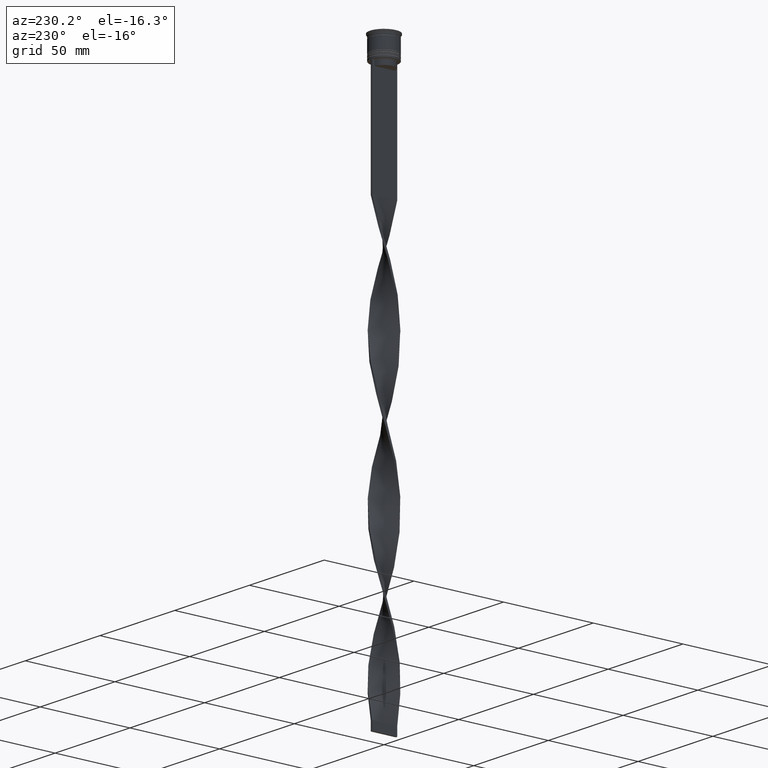
[diagram: clean part render]
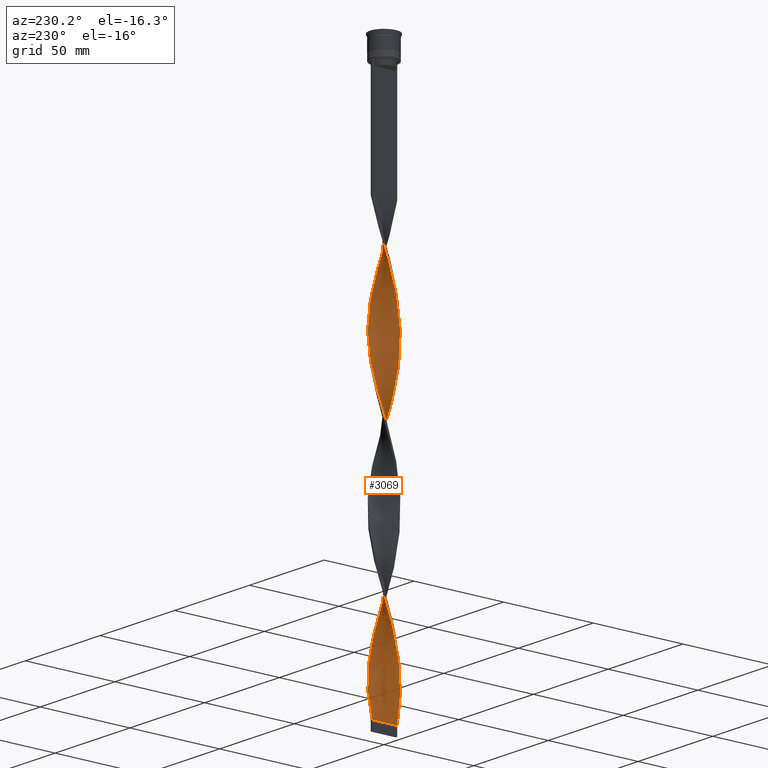
[diagram: same view with one face highlighted and labeled with its STEP entity id]
A machine part, auxiliary view. The second image highlights one B-rep face of the part: STEP entity #3069.
In plain terms, the highlighted face is a freeform B-spline surface patch.
Its self-contained STEP definition (entity closure, byte-faithful):
#2 = CARTESIAN_POINT ( 'NONE',  ( -6.502887116878603990, 2.638647218772209868, -260.6000000000000227 ) ) ;
#5 = CARTESIAN_POINT ( 'NONE',  ( 6.944720379959847811, -1.151482222195765681, -262.5541666666666742 ) ) ;
#15 = CARTESIAN_POINT ( 'NONE',  ( -3.623436760271013135, -6.010050419448804249, -295.7750000000000341 ) ) ;
#35 = CARTESIAN_POINT ( 'NONE',  ( -1.588885425579185995, -6.835601151645850138, -303.5916666666666401 ) ) ;
#43 = CARTESIAN_POINT ( 'NONE',  ( 6.295221077053192893, 3.150435534158375628, -278.1875000000001137 ) ) ;
#56 = CARTESIAN_POINT ( 'NONE',  ( -6.502887116878599549, -2.638647218772206759, -198.0666666666666629 ) ) ;
#71 = CARTESIAN_POINT ( 'NONE',  ( -6.944720379959849588, 1.151482222195763239, -184.3875000000000455 ) ) ;
#90 = CARTESIAN_POINT ( 'NONE',  ( -5.665029177712285424, 4.178815248312737651, -172.6624999999999943 ) ) ;
#102 = CARTESIAN_POINT ( 'NONE',  ( -2.638647218772210312, -6.502887116878603990, -143.3499999999999943 ) ) ;
#117 = CARTESIAN_POINT ( 'NONE',  ( -3.150435534158374740, 6.295221077053192893, -160.9375000000000568 ) ) ;
#124 = CARTESIAN_POINT ( 'NONE',  ( -3.150435534158378292, -6.295221077053197334, -141.3958333333333144 ) ) ;
#127 = CARTESIAN_POINT ( 'NONE',  ( -5.665029177712290753, -4.178815248312736763, -129.6708333333333769 ) ) ;
#134 = CARTESIAN_POINT ( 'NONE',  ( 3.709988268859837568, 5.957011586770866174, -291.8666666666666742 ) ) ;
#146 = CARTESIAN_POINT ( 'NONE',  ( 6.835601151645850138, -1.588885425579186439, -186.3416666666666970 ) ) ;
#148 = CARTESIAN_POINT ( 'NONE',  ( -6.960649146587694069, 1.050911947772329658, -110.1291666666666629 ) ) ;
#149 = CARTESIAN_POINT ( 'NONE',  ( 2.126858903386040112, -6.710553156704005318, -78.86249999999999716 ) ) ;
#154 = CARTESIAN_POINT ( 'NONE',  ( 6.944720379959848700, -1.151482222195765681, -262.5541666666666742 ) ) ;
#164 = CARTESIAN_POINT ( 'NONE',  ( -6.248993995829452253, -3.241161289406943702, -125.7625000000000313 ) ) ;
#168 = CARTESIAN_POINT ( 'NONE',  ( -5.303300858899104853, 4.596194077712558723, -170.7083333333333428 ) ) ;
#173 = EDGE_LOOP ( 'NONE', ( #2008, #2269, #2454, #3979 ) ) ;
#174 = CARTESIAN_POINT ( 'NONE',  ( 5.665029177712287201, -4.178815248312734987, -250.8291666666666799 ) ) ;
#184 = CARTESIAN_POINT ( 'NONE',  ( 0.6011970849840465592, -6.992035616686082200, -155.0750000000000171 ) ) ;
#185 = CARTESIAN_POINT ( 'NONE',  ( -1.050911947772328103, 6.960649146587689629, -153.1208333333333655 ) ) ;
#189 = CARTESIAN_POINT ( 'NONE',  ( 4.519005263234784131, -5.369226334478393703, -244.9666666666666686 ) ) ;
#196 = CARTESIAN_POINT ( 'NONE',  ( -1.687590702477055782, 6.811904111253551442, -80.81666666666667709 ) ) ;
#202 = CARTESIAN_POINT ( 'NONE',  ( 5.369226334478393703, 4.519005263234783243, -127.7166666666666686 ) ) ;
#215 = VECTOR ( 'NONE', #541, 1000.000000000000000 ) ;
#216 = CARTESIAN_POINT ( 'NONE',  ( -6.679087842547250631, -2.223699182758345660, -278.1875000000001137 ) ) ;
#220 = CARTESIAN_POINT ( 'NONE',  ( 6.248993995829446924, -3.241161289406941926, -98.40416666666669698 ) ) ;
#236 = CARTESIAN_POINT ( 'NONE',  ( 2.732430236082644015, -6.464040919188350998, -162.8916666666666515 ) ) ;
#243 = CARTESIAN_POINT ( 'NONE',  ( 3.150435534158381845, 6.295221077053196446, -219.5625000000000284 ) ) ;
#245 = CARTESIAN_POINT ( 'NONE',  ( 6.010050419448799808, 3.623436760271010026, -123.8083333333333371 ) ) ;
#255 = CARTESIAN_POINT ( 'NONE',  ( 3.623436760271014023, 6.010050419448804249, -217.6083333333333485 ) ) ;
#262 = CARTESIAN_POINT ( 'NONE',  ( 6.960649146587694069, -1.050911947772333876, -188.2958333333333485 ) ) ;
#272 = CARTESIAN_POINT ( 'NONE',  ( 6.248993995829454029, 3.241161289406941037, -203.9291666666666742 ) ) ;
#278 = CARTESIAN_POINT ( 'NONE',  ( -4.596194077712561388, 5.303300858899108405, -248.8750000000000000 ) ) ;
#281 = CARTESIAN_POINT ( 'NONE',  ( 6.811904111253546112, -1.687590702477054450, -260.6000000000000227 ) ) ;
#293 = CARTESIAN_POINT ( 'NONE',  ( 5.957011586770871503, 3.709988268859838012, -205.8833333333333258 ) ) ;
#303 = CARTESIAN_POINT ( 'NONE',  ( -6.295221077053198222, 3.150435534158378292, -258.6458333333333712 ) ) ;
#306 = CARTESIAN_POINT ( 'NONE',  ( -2.732430236082644015, -6.464040919188344780, -217.6083333333333485 ) ) ;
#316 = CARTESIAN_POINT ( 'NONE',  ( -2.732430236082644459, 6.464040919188350998, -241.0583333333333087 ) ) ;
#325 = CARTESIAN_POINT ( 'NONE',  ( 5.369226334478393703, 4.519005263234783243, -284.0500000000000114 ) ) ;
#337 = CARTESIAN_POINT ( 'NONE',  ( -5.665029177712290753, -4.178815248312736763, -286.0041666666667197 ) ) ;
#360 = CARTESIAN_POINT ( 'NONE',  ( -6.835601151645846585, -1.588885425579183330, -194.1583333333333314 ) ) ;
#379 = CARTESIAN_POINT ( 'NONE',  ( -6.464040919188344780, 2.732430236082643571, -178.5249999999999773 ) ) ;
#398 = CARTESIAN_POINT ( 'NONE',  ( -4.596194077712558723, -5.303300858899103964, -209.7916666666666572 ) ) ;
#404 = CARTESIAN_POINT ( 'NONE',  ( -4.596194077712561388, 5.303300858899108405, -92.54166666666667140 ) ) ;
#414 = CARTESIAN_POINT ( 'NONE',  ( 6.248993995829446924, -3.241161289406941926, -98.40416666666669698 ) ) ;
#427 = CARTESIAN_POINT ( 'NONE',  ( 6.010050419448804249, -3.623436760271013579, -178.5249999999999773 ) ) ;
#434 = CARTESIAN_POINT ( 'NONE',  ( 0.5000000000000000000, -6.999999999999997335, -73.00000000000001421 ) ) ;
#440 = CARTESIAN_POINT ( 'NONE',  ( -5.957011586770866174, 3.709988268859837568, -174.6166666666666742 ) ) ;
#449 = CARTESIAN_POINT ( 'NONE',  ( -1.050911947772330324, -6.960649146587694958, -149.2125000000000057 ) ) ;
#451 = CARTESIAN_POINT ( 'NONE',  ( 6.010050419448804249, -3.623436760271013579, -178.5249999999999773 ) ) ;
#456 = CARTESIAN_POINT ( 'NONE',  ( -3.709988268859838456, -5.957011586770866174, -213.6999999999999886 ) ) ;
#464 = CARTESIAN_POINT ( 'NONE',  ( 7.000000000000002665, -0.5000000000000013323, -190.2500000000000000 ) ) ;
#466 = CARTESIAN_POINT ( 'NONE',  ( -6.710553156704009758, 2.126858903386041888, -106.2208333333333456 ) ) ;
#467 = CARTESIAN_POINT ( 'NONE',  ( -3.150435534158375184, 6.295221077053193781, -160.9375000000000284 ) ) ;
#473 = CARTESIAN_POINT ( 'NONE',  ( 6.835601151645846585, 1.588885425579184218, -272.3249999999999886 ) ) ;
#484 = CARTESIAN_POINT ( 'NONE',  ( -3.150435534158378736, -6.295221077053198222, -141.3958333333333428 ) ) ;
#486 = CARTESIAN_POINT ( 'NONE',  ( -6.502887116878599549, -2.638647218772206759, -198.0666666666666629 ) ) ;
#502 = CARTESIAN_POINT ( 'NONE',  ( 1.687590702477054894, -6.811904111253552330, -158.9833333333333485 ) ) ;
#503 = CARTESIAN_POINT ( 'NONE',  ( 6.679087842547245302, -2.223699182758344772, -102.3125000000000142 ) ) ;
#515 = CARTESIAN_POINT ( 'NONE',  ( 4.519005263234789460, 5.369226334478396367, -213.6999999999999886 ) ) ;
#519 = CARTESIAN_POINT ( 'NONE',  ( -3.709988268859838456, -5.957011586770866174, -213.6999999999999886 ) ) ;
#524 = CARTESIAN_POINT ( 'NONE',  ( -1.687590702477056226, -6.811904111253546112, -221.5166666666666799 ) ) ;
#527 = CARTESIAN_POINT ( 'NONE',  ( -6.464040919188350998, -2.732430236082644459, -123.8083333333333371 ) ) ;
#534 = CARTESIAN_POINT ( 'NONE',  ( -7.039350853412313036, -0.05091194777232888741, -270.3708333333333940 ) ) ;
#537 = CARTESIAN_POINT ( 'NONE',  ( 1.687590702477054894, 6.811904111253546112, -143.3499999999999943 ) ) ;
#541 = DIRECTION ( 'NONE',  ( 0.000000000000000000, 1.000000000000000000, 0.000000000000000000 ) ) ;
#550 = CARTESIAN_POINT ( 'NONE',  ( 1.050911947772328991, -6.960649146587689629, -74.95416666666667993 ) ) ;
#557 = CARTESIAN_POINT ( 'NONE',  ( -5.724879761844409387, 4.096437986383648422, -254.7375000000000114 ) ) ;
#571 = CARTESIAN_POINT ( 'NONE',  ( 0.5000000000000000000, -6.999999999999997335, -73.00000000000001421 ) ) ;
#590 = CARTESIAN_POINT ( 'NONE',  ( -6.710553156704010647, 2.126858903386041888, -262.5541666666666742 ) ) ;
#597 = CARTESIAN_POINT ( 'NONE',  ( -0.5000000000000008882, -7.000000000000002665, -307.5000000000000000 ) ) ;
#598 = CARTESIAN_POINT ( 'NONE',  ( 2.126858903386039668, 6.710553156704010647, -223.4708333333333599 ) ) ;
#601 = CARTESIAN_POINT ( 'NONE',  ( 6.999999999999997335, 0.4999999999999995559, -268.4166666666666288 ) ) ;
#612 = CARTESIAN_POINT ( 'NONE',  ( -4.096437986383648422, -5.724879761844408499, -293.8208333333333258 ) ) ;
#625 = CARTESIAN_POINT ( 'NONE',  ( 6.835601151645846585, 1.588885425579184218, -272.3249999999999886 ) ) ;
#633 = CARTESIAN_POINT ( 'NONE',  ( 3.150435534158381845, 6.295221077053195557, -219.5625000000000284 ) ) ;
#638 = VERTEX_POINT ( 'NONE', #2746 ) ;
#652 = CARTESIAN_POINT ( 'NONE',  ( 5.665029177712287201, -4.178815248312734987, -94.49583333333333712 ) ) ;
#672 = CARTESIAN_POINT ( 'NONE',  ( 4.519005263234784131, -5.369226334478393703, -88.63333333333333997 ) ) ;
#688 = CARTESIAN_POINT ( 'NONE',  ( 4.941572540085925169, -5.013572907112383348, -90.58750000000001990 ) ) ;
#694 = CARTESIAN_POINT ( 'NONE',  ( 6.992035616686076871, -0.6011970849840472253, -108.1750000000000114 ) ) ;
#703 = CARTESIAN_POINT ( 'NONE',  ( 5.369226334478396367, -4.519005263234788572, -174.6166666666666742 ) ) ;
#711 = CARTESIAN_POINT ( 'NONE',  ( 6.679087842547246190, -2.223699182758344772, -102.3125000000000142 ) ) ;
#719 = CARTESIAN_POINT ( 'NONE',  ( -3.241161289406943702, 6.248993995829452253, -86.67916666666667425 ) ) ;
#731 = CARTESIAN_POINT ( 'NONE',  ( 1.151482222195765681, 6.944720379959848700, -145.3041666666666742 ) ) ;
#741 = EDGE_CURVE ( 'NONE', #2146, #1235, #3653, .T. ) ;
#743 = CARTESIAN_POINT ( 'NONE',  ( -6.502887116878603990, 2.638647218772209868, -104.2666666666666799 ) ) ;
#746 = CARTESIAN_POINT ( 'NONE',  ( -6.944720379959854029, -1.151482222195765681, -117.9458333333333400 ) ) ;
#753 = CARTESIAN_POINT ( 'NONE',  ( 3.623436760271010026, -6.010050419448799808, -241.0583333333333087 ) ) ;
#762 = CARTESIAN_POINT ( 'NONE',  ( 4.178815248312736763, -5.665029177712291641, -168.7541666666666629 ) ) ;
#763 = CARTESIAN_POINT ( 'NONE',  ( -4.941572540085927834, -5.013572907112386901, -133.5791666666666515 ) ) ;
#770 = CARTESIAN_POINT ( 'NONE',  ( -0.6011970849840483355, -6.992035616686076871, -225.4249999999999829 ) ) ;
#779 = CARTESIAN_POINT ( 'NONE',  ( -2.638647218772210312, -6.502887116878603990, -143.3499999999999943 ) ) ;
#781 = CARTESIAN_POINT ( 'NONE',  ( -6.835601151645846585, -1.588885425579183330, -194.1583333333333314 ) ) ;
#799 = CARTESIAN_POINT ( 'NONE',  ( -7.000000000000002665, 0.5000000000000004441, -112.0833333333333428 ) ) ;
#801 = CARTESIAN_POINT ( 'NONE',  ( 6.835601151645846585, 1.588885425579184218, -115.9916666666666742 ) ) ;
#811 = CARTESIAN_POINT ( 'NONE',  ( -0.5000000000000003331, -2.333333333333336590, -307.5000000000000000 ) ) ;
#816 = CARTESIAN_POINT ( 'NONE',  ( -6.710553156704009758, 2.126858903386041888, -262.5541666666666742 ) ) ;
#819 = CARTESIAN_POINT ( 'NONE',  ( -4.178815248312737651, -5.665029177712284536, -211.7458333333333371 ) ) ;
#824 = CARTESIAN_POINT ( 'NONE',  ( 6.248993995829446924, -3.241161289406941926, -254.7375000000000114 ) ) ;
#828 = CARTESIAN_POINT ( 'NONE',  ( -6.992035616686082200, -0.6011970849840472253, -115.9916666666666742 ) ) ;
#834 = CARTESIAN_POINT ( 'NONE',  ( -5.303300858899108405, -4.596194077712559611, -287.9583333333333144 ) ) ;
#836 = CARTESIAN_POINT ( 'NONE',  ( -7.039350853412307707, 0.05091194777233333524, -188.2958333333333485 ) ) ;
#845 = CARTESIAN_POINT ( 'NONE',  ( 0.5000000000000000000, 7.000000000000002665, -229.3333333333333428 ) ) ;
#853 = CARTESIAN_POINT ( 'NONE',  ( -1.588885425579185995, -6.835601151645850138, -303.5916666666666401 ) ) ;
#858 = CARTESIAN_POINT ( 'NONE',  ( 4.096437986383644869, -5.724879761844405834, -243.0124999999999886 ) ) ;
#870 = CARTESIAN_POINT ( 'NONE',  ( -0.5000000000000008882, -7.000000000000002665, -307.5000000000000000 ) ) ;
#872 = CARTESIAN_POINT ( 'NONE',  ( -1.687590702477055782, 6.811904111253551442, -237.1500000000000057 ) ) ;
#878 = CARTESIAN_POINT ( 'NONE',  ( -5.665029177712290753, -4.178815248312736763, -286.0041666666667197 ) ) ;
#880 = CARTESIAN_POINT ( 'NONE',  ( 4.941572540085925169, -5.013572907112383348, -246.9208333333333769 ) ) ;
#892 = CARTESIAN_POINT ( 'NONE',  ( -5.013572907112387789, 4.941572540085928722, -250.8291666666666799 ) ) ;
#899 = CARTESIAN_POINT ( 'NONE',  ( 6.835601151645850138, -1.588885425579186439, -186.3416666666666970 ) ) ;
#903 = CARTESIAN_POINT ( 'NONE',  ( -2.223699182758348769, -6.679087842547244414, -219.5625000000000284 ) ) ;
#915 = CARTESIAN_POINT ( 'NONE',  ( -4.941572540085928722, -5.013572907112387789, -289.9125000000000227 ) ) ;
#924 = CARTESIAN_POINT ( 'NONE',  ( 0.05091194777232986579, 7.039350853412307707, -305.5458333333332916 ) ) ;
#936 = CARTESIAN_POINT ( 'NONE',  ( -7.039350853412313036, -0.05091194777232888741, -270.3708333333334508 ) ) ;
#951 = CARTESIAN_POINT ( 'NONE',  ( 4.519005263234784131, -5.369226334478393703, -244.9666666666666686 ) ) ;
#962 = CARTESIAN_POINT ( 'NONE',  ( -3.623436760271009138, 6.010050419448799808, -162.8916666666666515 ) ) ;
#979 = CARTESIAN_POINT ( 'NONE',  ( -5.369226334478394591, -4.519005263234783243, -205.8833333333333258 ) ) ;
#1001 = CARTESIAN_POINT ( 'NONE',  ( 2.732430236082643127, 6.464040919188344780, -139.4416666666666913 ) ) ;
#1021 = CARTESIAN_POINT ( 'NONE',  ( 4.096437986383643981, -5.724879761844404946, -86.67916666666667425 ) ) ;
#1031 = CARTESIAN_POINT ( 'NONE',  ( -5.665029177712290753, -4.178815248312736763, -129.6708333333333769 ) ) ;
#1040 = CARTESIAN_POINT ( 'NONE',  ( 1.687590702477054894, 6.811904111253546112, -143.3499999999999943 ) ) ;
#1042 = EDGE_CURVE ( 'NONE', #1235, #2431, #2809, .T. ) ;
#1051 = CARTESIAN_POINT ( 'NONE',  ( -4.941572540085928722, -5.013572907112387789, -133.5791666666666515 ) ) ;
#1053 = CARTESIAN_POINT ( 'NONE',  ( -2.732430236082644459, 6.464040919188350998, -84.72500000000000853 ) ) ;
#1062 = CARTESIAN_POINT ( 'NONE',  ( -1.151482222195763683, -6.944720379959849588, -223.4708333333333599 ) ) ;
#1073 = CARTESIAN_POINT ( 'NONE',  ( -6.835601151645851026, 1.588885425579185995, -108.1750000000000114 ) ) ;
#1077 = CARTESIAN_POINT ( 'NONE',  ( 4.178815248312736763, -5.665029177712291641, -168.7541666666666913 ) ) ;
#1084 = CARTESIAN_POINT ( 'NONE',  ( 7.039350853412307707, -0.05091194777232931762, -266.4625000000000341 ) ) ;
#1092 = CARTESIAN_POINT ( 'NONE',  ( -0.6011970849840476694, 6.992035616686082200, -76.90833333333334565 ) ) ;
#1094 = CARTESIAN_POINT ( 'NONE',  ( -3.241161289406943702, 6.248993995829452253, -86.67916666666668846 ) ) ;
#1099 = CARTESIAN_POINT ( 'NONE',  ( -3.623436760271009138, 6.010050419448799808, -162.8916666666666515 ) ) ;
#1103 = CARTESIAN_POINT ( 'NONE',  ( 2.223699182758344772, 6.679087842547246190, -297.7291666666666288 ) ) ;
#1112 = CARTESIAN_POINT ( 'NONE',  ( -6.835601151645851026, 1.588885425579185995, -108.1750000000000114 ) ) ;
#1113 = CARTESIAN_POINT ( 'NONE',  ( -5.369226334478394591, -4.519005263234783243, -205.8833333333333258 ) ) ;
#1118 = CARTESIAN_POINT ( 'NONE',  ( 6.502887116878599549, 2.638647218772207204, -276.2333333333333485 ) ) ;
#1131 = CARTESIAN_POINT ( 'NONE',  ( 5.369226334478396367, -4.519005263234788572, -174.6166666666666742 ) ) ;
#1135 = CARTESIAN_POINT ( 'NONE',  ( -6.999999999999997335, -0.4999999999999987232, -190.2500000000000000 ) ) ;
#1145 = CARTESIAN_POINT ( 'NONE',  ( 4.941572540085925169, -5.013572907112384236, -246.9208333333333485 ) ) ;
#1156 = CARTESIAN_POINT ( 'NONE',  ( 6.944720379959854917, 1.151482222195761684, -196.1125000000000114 ) ) ;
#1159 = CARTESIAN_POINT ( 'NONE',  ( -5.957011586770866174, 3.709988268859837568, -174.6166666666666742 ) ) ;
#1167 = CARTESIAN_POINT ( 'NONE',  ( -4.096437986383648422, -5.724879761844408499, -137.4875000000000114 ) ) ;
#1175 = CARTESIAN_POINT ( 'NONE',  ( -4.178815248312736763, 5.665029177712290753, -246.9208333333333769 ) ) ;
#1177 = CARTESIAN_POINT ( 'NONE',  ( 5.303300858899104853, -4.596194077712557835, -92.54166666666667140 ) ) ;
#1186 = CARTESIAN_POINT ( 'NONE',  ( 2.126858903386040112, -6.710553156704005318, -78.86249999999999716 ) ) ;
#1194 = CARTESIAN_POINT ( 'NONE',  ( 6.464040919188351886, 2.732430236082644015, -201.9750000000000227 ) ) ;
#1200 = CARTESIAN_POINT ( 'NONE',  ( 3.241161289406941926, 6.248993995829446924, -293.8208333333333258 ) ) ;
#1213 = CARTESIAN_POINT ( 'NONE',  ( 4.519005263234789460, 5.369226334478396367, -213.6999999999999886 ) ) ;
#1218 = CARTESIAN_POINT ( 'NONE',  ( 4.941572540085930498, 5.013572907112383348, -211.7458333333333371 ) ) ;
#1222 = CARTESIAN_POINT ( 'NONE',  ( 6.960649146587689629, 1.050911947772328325, -270.3708333333333940 ) ) ;
#1233 = CARTESIAN_POINT ( 'NONE',  ( 5.303300858899109294, 4.596194077712558723, -209.7916666666666572 ) ) ;
#1235 = VERTEX_POINT ( 'NONE', #2806 ) ;
#1237 = CARTESIAN_POINT ( 'NONE',  ( 5.957011586770871503, 3.709988268859838012, -205.8833333333333258 ) ) ;
#1241 = CARTESIAN_POINT ( 'NONE',  ( 4.596194077712557835, 5.303300858899104853, -287.9583333333333144 ) ) ;
#1251 = CARTESIAN_POINT ( 'NONE',  ( -3.150435534158378292, -6.295221077053197334, -297.7291666666666288 ) ) ;
#1270 = CARTESIAN_POINT ( 'NONE',  ( 6.944720379959848700, -1.151482222195765681, -106.2208333333333456 ) ) ;
#1278 = CARTESIAN_POINT ( 'NONE',  ( 4.178815248312734987, 5.665029177712287201, -289.9125000000000227 ) ) ;
#1287 = CARTESIAN_POINT ( 'NONE',  ( -6.295221077053191117, -3.150435534158376960, -200.0208333333333712 ) ) ;
#1306 = CARTESIAN_POINT ( 'NONE',  ( -5.724879761844406723, -4.096437986383641316, -203.9291666666666742 ) ) ;
#1327 = CARTESIAN_POINT ( 'NONE',  ( -6.992035616686076871, 0.6011970849840481135, -186.3416666666666970 ) ) ;
#1340 = CARTESIAN_POINT ( 'NONE',  ( -2.126858903386042332, -6.710553156704010647, -145.3041666666666742 ) ) ;
#1352 = CARTESIAN_POINT ( 'NONE',  ( 5.303300858899104853, -4.596194077712557835, -92.54166666666667140 ) ) ;
#1359 = CARTESIAN_POINT ( 'NONE',  ( -2.223699182758346105, 6.679087842547251519, -82.77083333333337123 ) ) ;
#1361 = CARTESIAN_POINT ( 'NONE',  ( 2.223699182758345216, -6.679087842547251519, -160.9375000000000284 ) ) ;
#1379 = CARTESIAN_POINT ( 'NONE',  ( 6.960649146587694958, -1.050911947772333654, -188.2958333333333485 ) ) ;
#1381 = CARTESIAN_POINT ( 'NONE',  ( -7.039350853412313036, -0.05091194777232888741, -114.0375000000000227 ) ) ;
#1390 = CARTESIAN_POINT ( 'NONE',  ( 5.369226334478393703, 4.519005263234783243, -284.0500000000000114 ) ) ;
#1400 = CARTESIAN_POINT ( 'NONE',  ( 6.710553156704011535, -2.126858903386039668, -184.3875000000000455 ) ) ;
#1404 = CARTESIAN_POINT ( 'NONE',  ( -4.178815248312736763, 5.665029177712290753, -90.58750000000001990 ) ) ;
#1409 = CARTESIAN_POINT ( 'NONE',  ( -6.248993995829448700, 3.241161289406939705, -176.5708333333333542 ) ) ;
#1413 = CARTESIAN_POINT ( 'NONE',  ( 4.596194077712557835, 5.303300858899104853, -287.9583333333333144 ) ) ;
#1426 = CARTESIAN_POINT ( 'NONE',  ( -6.811904111253552330, -1.687590702477055338, -119.9000000000000057 ) ) ;
#1429 = CARTESIAN_POINT ( 'NONE',  ( -6.010050419448800696, -3.623436760271009138, -201.9750000000000227 ) ) ;
#1433 = CARTESIAN_POINT ( 'NONE',  ( 5.957011586770867062, -3.709988268859836236, -252.7833333333333599 ) ) ;
#1443 = CARTESIAN_POINT ( 'NONE',  ( -4.519005263234788572, -5.369226334478396367, -135.5333333333333314 ) ) ;
#1446 = CARTESIAN_POINT ( 'NONE',  ( 5.013572907112383348, 4.941572540085925169, -129.6708333333333769 ) ) ;
#1461 = CARTESIAN_POINT ( 'NONE',  ( -6.248993995829452253, -3.241161289406943702, -282.0958333333333599 ) ) ;
#1464 = CARTESIAN_POINT ( 'NONE',  ( 3.709988268859837568, 5.957011586770866174, -135.5333333333333314 ) ) ;
#1476 = CARTESIAN_POINT ( 'NONE',  ( 4.596194077712559611, -5.303300858899109294, -170.7083333333333428 ) ) ;
#1481 = CARTESIAN_POINT ( 'NONE',  ( -3.150435534158378736, -6.295221077053198222, -297.7291666666666288 ) ) ;
#1483 = CARTESIAN_POINT ( 'NONE',  ( 0.6011970849840476694, 6.992035616686076871, -147.2583333333333258 ) ) ;
#1492 = CARTESIAN_POINT ( 'NONE',  ( -0.4999999999999991673, 6.999999999999997335, -307.5000000000000000 ) ) ;
#1493 = CARTESIAN_POINT ( 'NONE',  ( 2.638647218772211200, 6.502887116878603990, -221.5166666666666799 ) ) ;
#1499 = CARTESIAN_POINT ( 'NONE',  ( -1.687590702477055782, 6.811904111253551442, -237.1500000000000057 ) ) ;
#1502 = CARTESIAN_POINT ( 'NONE',  ( 6.248993995829446924, -3.241161289406941926, -254.7375000000000114 ) ) ;
#1510 = CARTESIAN_POINT ( 'NONE',  ( 4.096437986383647534, 5.724879761844409387, -215.6541666666667254 ) ) ;
#1520 = CARTESIAN_POINT ( 'NONE',  ( 1.588885425579186883, 6.835601151645850138, -225.4249999999999829 ) ) ;
#1524 = CARTESIAN_POINT ( 'NONE',  ( -0.6011970849840483355, -6.992035616686076871, -225.4249999999999829 ) ) ;
#1536 = CARTESIAN_POINT ( 'NONE',  ( 2.126858903386039668, 6.710553156704011535, -223.4708333333333599 ) ) ;
#1541 = CARTESIAN_POINT ( 'NONE',  ( 6.710553156704010647, -2.126858903386039668, -184.3875000000000455 ) ) ;
#1543 = CARTESIAN_POINT ( 'NONE',  ( 7.039350853412307707, -0.05091194777232932456, -266.4625000000000341 ) ) ;
#1553 = CARTESIAN_POINT ( 'NONE',  ( -6.835601151645851026, 1.588885425579185995, -264.5083333333333258 ) ) ;
#1555 =( BOUNDED_SURFACE ( )  B_SPLINE_SURFACE ( 1, 2, ( 
 ( #3639, #2007, #1092, #1950, #3894, #1359, #3195, #719, #2316, #2645, #404, #2602, #3253, #1989, #3855, #3872, #743, #3957, #1073, #2074, #2383, #1640, #828, #3323, #2920, #3838, #527, #164, #1768, #1031, #2713, #1051, #3236, #1167, #2893, #124, #102, #1340, #2291, #449, #3028, #2586, #2274, #3525, #1963, #3573, #236, #3213, #3548, #762, #1476, #3506, #703, #1685, #427, #1663, #2936, #1400, #146, #1379, #464, #1700, #2624, #2952, #3066, #3047, #1856, #272, #293, #1573, #1233, #2732, #1213, #1510, #255, #633, #1493, #1536, #2755, #3086, #845, #3387, #2095, #3998, #872, #2451, #316, #3125, #1811, #3707, #3750, #892, #2160, #2142, #3109, #2487, #1791, #590, #1553, #3976, #2800, #936, #2402, #1832, #2783, #3342, #3410, #4021, #1877, #337, #2469, #915, #3726, #612, #15, #1251, #2186, #3437, #35, #2825, #3658 ),
 ( #571, #550, #2120, #1186, #2425, #3682, #3366, #1021, #672, #1956, #1352, #652, #1919, #414, #2844, #711, #2595, #1270, #694, #2248, #3772, #2267, #2865, #3535, #3226, #1937, #3830, #3498, #3185, #3515, #1614, #3204, #1652, #2929, #1001, #3848, #1040, #731, #1676, #2884, #1978, #3475, #1895, #1631, #2906, #117, #962, #2283, #3168, #2205, #2532, #90, #440, #3454, #379, #2512, #3808, #71, #1327, #2552, #3143, #2574, #360, #1595, #56, #1287, #3787, #1306, #979, #2226, #398, #3000, #456, #3318, #1711, #2655, #524, #1062, #770, #2304, #2000, #2962, #3903, #2689, #3561, #3865, #753, #3245, #189, #1145, #1694, #174, #1433, #824, #2071, #2379, #2015, #154, #3883, #1084, #2053, #2945, #473, #2670, #1118, #2341, #1764, #3262, #1390, #3616, #1413, #2031, #134, #2981, #2635, #1103, #3597, #2325, #3636, #3582, #3283 ) ),
 .UNSPECIFIED., .F., .F., .F. ) 
 B_SPLINE_SURFACE_WITH_KNOTS ( ( 2, 2 ),
 ( 3, 2, 2, 2, 2, 2, 2, 2, 2, 2, 2, 2, 2, 2, 2, 2, 2, 2, 2, 2, 2, 2, 2, 2, 2, 2, 2, 2, 2, 2, 2, 2, 2, 2, 2, 2, 2, 2, 2, 2, 2, 2, 2, 2, 2, 2, 2, 2, 2, 2, 2, 2, 2, 2, 2, 2, 2, 2, 2, 2, 3 ),
 ( 0.000000000000000000, 1.000000000000000000 ),
 ( 0.000000000000000000, 0.01250000000000000069, 0.02500000000000000139, 0.03749999999999999861, 0.05000000000000000278, 0.06250000000000000000, 0.07499999999999999722, 0.08749999999999999445, 0.1000000000000000056, 0.1125000000000000028, 0.1250000000000000000, 0.1375000000000000111, 0.1499999999999999944, 0.1625000000000000056, 0.1749999999999999889, 0.1875000000000000000, 0.2000000000000000111, 0.2124999999999999944, 0.2250000000000000056, 0.2374999999999999889, 0.2500000000000000000, 0.2625000000000000111, 0.2750000000000000222, 0.2874999999999999778, 0.2999999999999999889, 0.3125000000000000000, 0.3250000000000000111, 0.3375000000000000222, 0.3499999999999999778, 0.3624999999999999889, 0.3750000000000000000, 0.3875000000000000111, 0.4000000000000000222, 0.4124999999999999778, 0.4249999999999999889, 0.4375000000000000000, 0.4500000000000000111, 0.4625000000000000222, 0.4749999999999999778, 0.4874999999999999889, 0.5000000000000000000, 0.5124999999999999556, 0.5250000000000000222, 0.5374999999999999778, 0.5500000000000000444, 0.5625000000000000000, 0.5749999999999999556, 0.5875000000000000222, 0.5999999999999999778, 0.6125000000000000444, 0.6250000000000000000, 0.6374999999999999556, 0.6500000000000000222, 0.6624999999999999778, 0.6750000000000000444, 0.6875000000000000000, 0.6999999999999999556, 0.7125000000000000222, 0.7249999999999999778, 0.7375000000000000444, 0.7500000000000000000 ),
 .UNSPECIFIED. ) 
 GEOMETRIC_REPRESENTATION_ITEM ( )  RATIONAL_B_SPLINE_SURFACE ( (
 ( 1.000000000000000000, 0.9969173337331279638, 1.000000000000000000, 0.9969173337331279638, 1.000000000000000000, 0.9969173337331279638, 1.000000000000000000, 0.9969173337331279638, 1.000000000000000000, 0.9969173337331279638, 1.000000000000000000, 0.9969173337331279638, 1.000000000000000000, 0.9969173337331279638, 1.000000000000000000, 0.9969173337331279638, 1.000000000000000000, 0.9969173337331279638, 1.000000000000000000, 0.9969173337331279638, 1.000000000000000000, 0.9969173337331279638, 1.000000000000000000, 0.9969173337331279638, 1.000000000000000000, 0.9969173337331279638, 1.000000000000000000, 0.9969173337331279638, 1.000000000000000000, 0.9969173337331279638, 1.000000000000000000, 0.9969173337331279638, 1.000000000000000000, 0.9969173337331279638, 1.000000000000000000, 0.9969173337331279638, 1.000000000000000000, 0.9969173337331279638, 1.000000000000000000, 0.9969173337331279638, 1.000000000000000000, 0.9969173337331279638, 1.000000000000000000, 0.9969173337331279638, 1.000000000000000000, 0.9969173337331279638, 1.000000000000000000, 0.9969173337331279638, 1.000000000000000000, 0.9969173337331279638, 1.000000000000000000, 0.9969173337331279638, 1.000000000000000000, 0.9969173337331279638, 1.000000000000000000, 0.9969173337331279638, 1.000000000000000000, 0.9969173337331279638, 1.000000000000000000, 0.9969173337331279638, 1.000000000000000000, 0.9969173337331279638, 1.000000000000000000, 0.9969173337331279638, 1.000000000000000000, 0.9969173337331279638, 1.000000000000000000, 0.9969173337331279638, 1.000000000000000000, 0.9969173337331279638, 1.000000000000000000, 0.9969173337331279638, 1.000000000000000000, 0.9969173337331279638, 1.000000000000000000, 0.9969173337331279638, 1.000000000000000000, 0.9969173337331279638, 1.000000000000000000, 0.9969173337331279638, 1.000000000000000000, 0.9969173337331279638, 1.000000000000000000, 0.9969173337331279638, 1.000000000000000000, 0.9969173337331279638, 1.000000000000000000, 0.9969173337331279638, 1.000000000000000000, 0.9969173337331279638, 1.000000000000000000, 0.9969173337331279638, 1.000000000000000000, 0.9969173337331279638, 1.000000000000000000, 0.9969173337331279638, 1.000000000000000000, 0.9969173337331279638, 1.000000000000000000, 0.9969173337331279638, 1.000000000000000000, 0.9969173337331279638, 1.000000000000000000, 0.9969173337331279638, 1.000000000000000000, 0.9969173337331279638, 1.000000000000000000, 0.9969173337331279638, 1.000000000000000000, 0.9969173337331279638, 1.000000000000000000, 0.9969173337331279638, 1.000000000000000000, 0.9969173337331279638, 1.000000000000000000, 0.9969173337331279638, 1.000000000000000000, 0.9969173337331279638, 1.000000000000000000, 0.9969173337331279638, 1.000000000000000000),
 ( 1.000000000000000000, 0.9969173337331279638, 1.000000000000000000, 0.9969173337331279638, 1.000000000000000000, 0.9969173337331279638, 1.000000000000000000, 0.9969173337331279638, 1.000000000000000000, 0.9969173337331279638, 1.000000000000000000, 0.9969173337331279638, 1.000000000000000000, 0.9969173337331279638, 1.000000000000000000, 0.9969173337331279638, 1.000000000000000000, 0.9969173337331279638, 1.000000000000000000, 0.9969173337331279638, 1.000000000000000000, 0.9969173337331279638, 1.000000000000000000, 0.9969173337331279638, 1.000000000000000000, 0.9969173337331279638, 1.000000000000000000, 0.9969173337331279638, 1.000000000000000000, 0.9969173337331279638, 1.000000000000000000, 0.9969173337331279638, 1.000000000000000000, 0.9969173337331279638, 1.000000000000000000, 0.9969173337331279638, 1.000000000000000000, 0.9969173337331279638, 1.000000000000000000, 0.9969173337331279638, 1.000000000000000000, 0.9969173337331279638, 1.000000000000000000, 0.9969173337331279638, 1.000000000000000000, 0.9969173337331279638, 1.000000000000000000, 0.9969173337331279638, 1.000000000000000000, 0.9969173337331279638, 1.000000000000000000, 0.9969173337331279638, 1.000000000000000000, 0.9969173337331279638, 1.000000000000000000, 0.9969173337331279638, 1.000000000000000000, 0.9969173337331279638, 1.000000000000000000, 0.9969173337331279638, 1.000000000000000000, 0.9969173337331279638, 1.000000000000000000, 0.9969173337331279638, 1.000000000000000000, 0.9969173337331279638, 1.000000000000000000, 0.9969173337331279638, 1.000000000000000000, 0.9969173337331279638, 1.000000000000000000, 0.9969173337331279638, 1.000000000000000000, 0.9969173337331279638, 1.000000000000000000, 0.9969173337331279638, 1.000000000000000000, 0.9969173337331279638, 1.000000000000000000, 0.9969173337331279638, 1.000000000000000000, 0.9969173337331279638, 1.000000000000000000, 0.9969173337331279638, 1.000000000000000000, 0.9969173337331279638, 1.000000000000000000, 0.9969173337331279638, 1.000000000000000000, 0.9969173337331279638, 1.000000000000000000, 0.9969173337331279638, 1.000000000000000000, 0.9969173337331279638, 1.000000000000000000, 0.9969173337331279638, 1.000000000000000000, 0.9969173337331279638, 1.000000000000000000, 0.9969173337331279638, 1.000000000000000000, 0.9969173337331279638, 1.000000000000000000, 0.9969173337331279638, 1.000000000000000000, 0.9969173337331279638, 1.000000000000000000, 0.9969173337331279638, 1.000000000000000000, 0.9969173337331279638, 1.000000000000000000, 0.9969173337331279638, 1.000000000000000000, 0.9969173337331279638, 1.000000000000000000, 0.9969173337331279638, 1.000000000000000000, 0.9969173337331279638, 1.000000000000000000, 0.9969173337331279638, 1.000000000000000000) ) ) 
 REPRESENTATION_ITEM ( '' )  SURFACE ( )  );
#1564 = CARTESIAN_POINT ( 'NONE',  ( -0.4999999999999991673, 6.999999999999997335, -307.5000000000000000 ) ) ;
#1573 = CARTESIAN_POINT ( 'NONE',  ( 5.665029177712290753, 4.178815248312739428, -207.8375000000000057 ) ) ;
#1584 = FACE_OUTER_BOUND ( 'NONE', #173, .T. ) ;
#1595 = CARTESIAN_POINT ( 'NONE',  ( -6.710553156704007094, -2.126858903386035671, -196.1125000000000398 ) ) ;
#1608 = CARTESIAN_POINT ( 'NONE',  ( 2.638647218772207648, -6.502887116878598661, -80.81666666666667709 ) ) ;
#1614 = CARTESIAN_POINT ( 'NONE',  ( 4.596194077712557835, 5.303300858899104853, -131.6250000000000000 ) ) ;
#1631 = CARTESIAN_POINT ( 'NONE',  ( -2.126858903386039223, 6.710553156704006206, -157.0291666666666970 ) ) ;
#1640 = CARTESIAN_POINT ( 'NONE',  ( -7.039350853412313036, -0.05091194777232888741, -114.0375000000000227 ) ) ;
#1652 = CARTESIAN_POINT ( 'NONE',  ( 3.709988268859837568, 5.957011586770866174, -135.5333333333333314 ) ) ;
#1663 = CARTESIAN_POINT ( 'NONE',  ( 6.295221077053195557, -3.150435534158381401, -180.4791666666666572 ) ) ;
#1676 = CARTESIAN_POINT ( 'NONE',  ( 0.6011970849840476694, 6.992035616686076871, -147.2583333333333258 ) ) ;
#1685 = CARTESIAN_POINT ( 'NONE',  ( 5.724879761844410275, -4.096437986383645757, -176.5708333333333258 ) ) ;
#1688 = CARTESIAN_POINT ( 'NONE',  ( -6.010050419448804249, 3.623436760271012691, -100.3583333333333343 ) ) ;
#1694 = CARTESIAN_POINT ( 'NONE',  ( 5.303300858899104853, -4.596194077712557835, -248.8750000000000000 ) ) ;
#1700 = CARTESIAN_POINT ( 'NONE',  ( 7.039350853412313036, 0.05091194777233126745, -192.2041666666667084 ) ) ;
#1702 = CARTESIAN_POINT ( 'NONE',  ( -6.502887116878603990, 2.638647218772209868, -104.2666666666666799 ) ) ;
#1705 = CARTESIAN_POINT ( 'NONE',  ( 5.665029177712287201, -4.178815248312734987, -94.49583333333333712 ) ) ;
#1711 = CARTESIAN_POINT ( 'NONE',  ( -2.732430236082644015, -6.464040919188344780, -217.6083333333333485 ) ) ;
#1725 = CARTESIAN_POINT ( 'NONE',  ( -5.303300858899108405, -4.596194077712559611, -131.6250000000000000 ) ) ;
#1727 = CARTESIAN_POINT ( 'NONE',  ( -2.126858903386039223, 6.710553156704006206, -157.0291666666666970 ) ) ;
#1736 = EDGE_CURVE ( 'NONE', #2431, #638, #3073, .T. ) ;
#1738 = CARTESIAN_POINT ( 'NONE',  ( 2.732430236082644015, -6.464040919188350998, -162.8916666666666515 ) ) ;
#1741 = CARTESIAN_POINT ( 'NONE',  ( 2.223699182758344772, 6.679087842547245302, -141.3958333333333428 ) ) ;
#1753 = CARTESIAN_POINT ( 'NONE',  ( -6.992035616686082200, -0.6011970849840472253, -272.3249999999999886 ) ) ;
#1758 = CARTESIAN_POINT ( 'NONE',  ( -3.241161289406940149, -6.248993995829447812, -215.6541666666666970 ) ) ;
#1764 = CARTESIAN_POINT ( 'NONE',  ( 6.010050419448799808, 3.623436760271010026, -280.1416666666666515 ) ) ;
#1768 = CARTESIAN_POINT ( 'NONE',  ( -5.957011586770871503, -3.709988268859838900, -127.7166666666666686 ) ) ;
#1776 = CARTESIAN_POINT ( 'NONE',  ( 6.811904111253552330, 1.687590702477054450, -198.0666666666666629 ) ) ;
#1779 = CARTESIAN_POINT ( 'NONE',  ( 1.151482222195765681, 6.944720379959847811, -145.3041666666666742 ) ) ;
#1791 = CARTESIAN_POINT ( 'NONE',  ( -6.502887116878603990, 2.638647218772209868, -260.6000000000000227 ) ) ;
#1796 = CARTESIAN_POINT ( 'NONE',  ( -2.638647218772210312, -6.502887116878603990, -299.6833333333332803 ) ) ;
#1798 = CARTESIAN_POINT ( 'NONE',  ( 6.679087842547245302, -2.223699182758344772, -258.6458333333333712 ) ) ;
#1811 = CARTESIAN_POINT ( 'NONE',  ( -3.709988268859839788, 5.957011586770871503, -244.9666666666666686 ) ) ;
#1818 = CARTESIAN_POINT ( 'NONE',  ( -3.709988268859839788, 5.957011586770871503, -244.9666666666666686 ) ) ;
#1821 = CARTESIAN_POINT ( 'NONE',  ( 1.588885425579184663, -6.835601151645846585, -233.2416666666666742 ) ) ;
#1832 = CARTESIAN_POINT ( 'NONE',  ( -6.944720379959854917, -1.151482222195765681, -274.2791666666666970 ) ) ;
#1841 = CARTESIAN_POINT ( 'NONE',  ( -6.010050419448804249, 3.623436760271012691, -256.6916666666666629 ) ) ;
#1844 = CARTESIAN_POINT ( 'NONE',  ( 3.150435534158376072, -6.295221077053192893, -239.1041666666666856 ) ) ;
#1856 = CARTESIAN_POINT ( 'NONE',  ( 6.464040919188351886, 2.732430236082644015, -201.9750000000000227 ) ) ;
#1865 = CARTESIAN_POINT ( 'NONE',  ( 6.710553156704006206, 2.126858903386039668, -274.2791666666666970 ) ) ;
#1877 = CARTESIAN_POINT ( 'NONE',  ( -5.957011586770871503, -3.709988268859838900, -284.0500000000000114 ) ) ;
#1895 = CARTESIAN_POINT ( 'NONE',  ( -1.588885425579183774, 6.835601151645846585, -155.0750000000000171 ) ) ;
#1919 = CARTESIAN_POINT ( 'NONE',  ( 5.957011586770867062, -3.709988268859836236, -96.45000000000000284 ) ) ;
#1932 = CARTESIAN_POINT ( 'NONE',  ( 3.623436760271010026, -6.010050419448799808, -84.72500000000000853 ) ) ;
#1937 = CARTESIAN_POINT ( 'NONE',  ( 6.295221077053192005, 3.150435534158375184, -121.8541666666666998 ) ) ;
#1950 = CARTESIAN_POINT ( 'NONE',  ( -1.151482222195766125, 6.944720379959854029, -78.86249999999999716 ) ) ;
#1956 = CARTESIAN_POINT ( 'NONE',  ( 4.941572540085925169, -5.013572907112384236, -90.58750000000000568 ) ) ;
#1963 = CARTESIAN_POINT ( 'NONE',  ( 1.687590702477054894, -6.811904111253552330, -158.9833333333333485 ) ) ;
#1969 = CARTESIAN_POINT ( 'NONE',  ( -0.05091194777232942864, 7.039350853412313036, -74.95416666666667993 ) ) ;
#1978 = CARTESIAN_POINT ( 'NONE',  ( -0.4999999999999991673, 6.999999999999997335, -151.1666666666666856 ) ) ;
#1989 = CARTESIAN_POINT ( 'NONE',  ( -5.724879761844408499, 4.096437986383648422, -98.40416666666669698 ) ) ;
#1993 = CARTESIAN_POINT ( 'NONE',  ( 0.05091194777232855434, -7.039350853412313036, -153.1208333333333655 ) ) ;
#2000 = CARTESIAN_POINT ( 'NONE',  ( 0.5000000000000000000, -6.999999999999997335, -229.3333333333333428 ) ) ;
#2007 = CARTESIAN_POINT ( 'NONE',  ( -0.05091194777232943558, 7.039350853412313036, -74.95416666666667993 ) ) ;
#2008 = ORIENTED_EDGE ( 'NONE', *, *, #741, .F. ) ;
#2009 = CARTESIAN_POINT ( 'NONE',  ( 5.013572907112384236, -4.941572540085930498, -172.6624999999999943 ) ) ;
#2010 = CARTESIAN_POINT ( 'NONE',  ( 7.039350853412307707, -0.05091194777232932456, -110.1291666666666629 ) ) ;
#2015 = CARTESIAN_POINT ( 'NONE',  ( 6.811904111253546112, -1.687590702477054450, -260.6000000000000227 ) ) ;
#2022 = CARTESIAN_POINT ( 'NONE',  ( -2.126858903386042332, -6.710553156704009758, -145.3041666666666742 ) ) ;
#2023 = CARTESIAN_POINT ( 'NONE',  ( -6.710553156704007094, -2.126858903386035671, -196.1125000000000114 ) ) ;
#2031 = CARTESIAN_POINT ( 'NONE',  ( 4.178815248312734987, 5.665029177712287201, -289.9125000000000227 ) ) ;
#2047 = CARTESIAN_POINT ( 'NONE',  ( -6.679087842547250631, -2.223699182758345660, -121.8541666666666998 ) ) ;
#2048 = CARTESIAN_POINT ( 'NONE',  ( -5.013572907112381571, -4.941572540085925169, -207.8375000000000057 ) ) ;
#2053 = CARTESIAN_POINT ( 'NONE',  ( 6.999999999999997335, 0.4999999999999995559, -268.4166666666666288 ) ) ;
#2063 = CARTESIAN_POINT ( 'NONE',  ( -6.960649146587694069, 1.050911947772329658, -266.4625000000000341 ) ) ;
#2065 = CARTESIAN_POINT ( 'NONE',  ( 6.710553156704006206, 2.126858903386039668, -117.9458333333333400 ) ) ;
#2071 = CARTESIAN_POINT ( 'NONE',  ( 6.464040919188344780, -2.732430236082642683, -256.6916666666666629 ) ) ;
#2074 = CARTESIAN_POINT ( 'NONE',  ( -6.960649146587694958, 1.050911947772329658, -110.1291666666666629 ) ) ;
#2081 = CARTESIAN_POINT ( 'NONE',  ( -4.941572540085927834, -5.013572907112386901, -289.9125000000000227 ) ) ;
#2083 = CARTESIAN_POINT ( 'NONE',  ( 6.999999999999997335, 0.4999999999999995559, -112.0833333333333428 ) ) ;
#2095 = CARTESIAN_POINT ( 'NONE',  ( -0.6011970849840476694, 6.992035616686082200, -233.2416666666666742 ) ) ;
#2103 = CARTESIAN_POINT ( 'NONE',  ( 6.248993995829454029, 3.241161289406940593, -203.9291666666666742 ) ) ;
#2109 = CARTESIAN_POINT ( 'NONE',  ( 3.623436760271010026, -6.010050419448799808, -241.0583333333333087 ) ) ;
#2120 = CARTESIAN_POINT ( 'NONE',  ( 1.588885425579184663, -6.835601151645846585, -76.90833333333334565 ) ) ;
#2122 =( BOUNDED_CURVE ( )  B_SPLINE_CURVE ( 2, ( #434, #2241, #2939, #149, #1608, #2545, #1932, #3802, #3491, #688, #1177, #1705, #3898, #220, #2977, #503, #3312, #2994, #3257, #2010, #2083, #3592, #801, #2065, #2721, #3965, #245, #2665, #202, #1446, #3015, #2350, #1464, #2704, #3670, #1741, #537, #1779, #1483, #2413, #3631, #185, #2680, #1727, #3038, #467, #1099, #3331, #3609, #2956, #168, #3929, #1159, #1409, #2651, #2336, #3948, #2392, #3276, #836, #1135, #2374, #781, #2023, #486, #3648, #1429, #3911, #1113, #2048, #3295, #819, #519, #1758, #306, #903, #3693, #2438, #1524, #3056, #2743, #3117, #1821, #3397, #2171, #1844, #2109, #858, #951, #880, #2522, #3422, #3714, #1502, #3098, #1798, #281, #5, #2770, #1543, #601, #1222, #625, #1865, #2790, #43, #4010, #3985, #325, #2459, #1241, #1278, #3736, #1200, #2152, #2476, #2131, #3131, #3375, #924, #1564 ),
 .UNSPECIFIED., .F., .T. ) 
 B_SPLINE_CURVE_WITH_KNOTS ( ( 3, 2, 2, 2, 2, 2, 2, 2, 2, 2, 2, 2, 2, 2, 2, 2, 2, 2, 2, 2, 2, 2, 2, 2, 2, 2, 2, 2, 2, 2, 2, 2, 2, 2, 2, 2, 2, 2, 2, 2, 2, 2, 2, 2, 2, 2, 2, 2, 2, 2, 2, 2, 2, 2, 2, 2, 2, 2, 2, 2, 3 ),
 ( 0.000000000000000000, 0.01250000000000000243, 0.02500000000000000486, 0.03749999999999999861, 0.05000000000000000971, 0.06250000000000000000, 0.07499999999999999722, 0.08749999999999998057, 0.1000000000000000194, 0.1125000000000000028, 0.1250000000000000000, 0.1375000000000000111, 0.1499999999999999944, 0.1625000000000000056, 0.1749999999999999611, 0.1875000000000000000, 0.2000000000000000389, 0.2124999999999999944, 0.2250000000000000056, 0.2374999999999999611, 0.2500000000000000000, 0.2625000000000000111, 0.2750000000000000222, 0.2874999999999999778, 0.2999999999999999889, 0.3125000000000000000, 0.3250000000000000111, 0.3375000000000000777, 0.3499999999999999223, 0.3624999999999999889, 0.3750000000000000000, 0.3875000000000000111, 0.4000000000000000777, 0.4124999999999999223, 0.4249999999999999889, 0.4375000000000000000, 0.4500000000000000111, 0.4625000000000000777, 0.4749999999999999223, 0.4874999999999999889, 0.5000000000000000000, 0.5124999999999999556, 0.5250000000000000222, 0.5374999999999999778, 0.5500000000000000444, 0.5625000000000000000, 0.5749999999999999556, 0.5875000000000000222, 0.5999999999999999778, 0.6125000000000000444, 0.6250000000000000000, 0.6374999999999999556, 0.6500000000000000222, 0.6624999999999999778, 0.6750000000000001554, 0.6875000000000000000, 0.6999999999999998446, 0.7125000000000000222, 0.7249999999999999778, 0.7375000000000001554, 0.7500000000000000000 ),
 .UNSPECIFIED. ) 
 CURVE ( )  GEOMETRIC_REPRESENTATION_ITEM ( )  RATIONAL_B_SPLINE_CURVE ( ( 1.000000000000000000, 0.9969173337331279638, 1.000000000000000000, 0.9969173337331279638, 1.000000000000000000, 0.9969173337331279638, 1.000000000000000000, 0.9969173337331279638, 1.000000000000000000, 0.9969173337331279638, 1.000000000000000000, 0.9969173337331279638, 1.000000000000000000, 0.9969173337331279638, 1.000000000000000000, 0.9969173337331279638, 1.000000000000000000, 0.9969173337331279638, 1.000000000000000000, 0.9969173337331279638, 1.000000000000000000, 0.9969173337331279638, 1.000000000000000000, 0.9969173337331279638, 1.000000000000000000, 0.9969173337331279638, 1.000000000000000000, 0.9969173337331279638, 1.000000000000000000, 0.9969173337331279638, 1.000000000000000000, 0.9969173337331279638, 1.000000000000000000, 0.9969173337331279638, 1.000000000000000000, 0.9969173337331279638, 1.000000000000000000, 0.9969173337331279638, 1.000000000000000000, 0.9969173337331279638, 1.000000000000000000, 0.9969173337331279638, 1.000000000000000000, 0.9969173337331279638, 1.000000000000000000, 0.9969173337331279638, 1.000000000000000000, 0.9969173337331279638, 1.000000000000000000, 0.9969173337331279638, 1.000000000000000000, 0.9969173337331279638, 1.000000000000000000, 0.9969173337331279638, 1.000000000000000000, 0.9969173337331279638, 1.000000000000000000, 0.9969173337331279638, 1.000000000000000000, 0.9969173337331279638, 1.000000000000000000, 0.9969173337331279638, 1.000000000000000000, 0.9969173337331279638, 1.000000000000000000, 0.9969173337331279638, 1.000000000000000000, 0.9969173337331279638, 1.000000000000000000, 0.9969173337331279638, 1.000000000000000000, 0.9969173337331279638, 1.000000000000000000, 0.9969173337331279638, 1.000000000000000000, 0.9969173337331279638, 1.000000000000000000, 0.9969173337331279638, 1.000000000000000000, 0.9969173337331279638, 1.000000000000000000, 0.9969173337331279638, 1.000000000000000000, 0.9969173337331279638, 1.000000000000000000, 0.9969173337331279638, 1.000000000000000000, 0.9969173337331279638, 1.000000000000000000, 0.9969173337331279638, 1.000000000000000000, 0.9969173337331279638, 1.000000000000000000, 0.9969173337331279638, 1.000000000000000000, 0.9969173337331279638, 1.000000000000000000, 0.9969173337331279638, 1.000000000000000000, 0.9969173337331279638, 1.000000000000000000, 0.9969173337331279638, 1.000000000000000000, 0.9969173337331279638, 1.000000000000000000, 0.9969173337331279638, 1.000000000000000000, 0.9969173337331279638, 1.000000000000000000, 0.9969173337331279638, 1.000000000000000000, 0.9969173337331279638, 1.000000000000000000, 0.9969173337331279638, 1.000000000000000000, 0.9969173337331279638, 1.000000000000000000, 0.9969173337331279638, 1.000000000000000000, 0.9969173337331279638, 1.000000000000000000 ) ) 
 REPRESENTATION_ITEM ( '' )  );
#2128 = CARTESIAN_POINT ( 'NONE',  ( -3.623436760271013135, -6.010050419448804249, -295.7750000000000341 ) ) ;
#2131 = CARTESIAN_POINT ( 'NONE',  ( 1.687590702477054894, 6.811904111253546112, -299.6833333333332803 ) ) ;
#2142 = CARTESIAN_POINT ( 'NONE',  ( -5.724879761844408499, 4.096437986383648422, -254.7375000000000114 ) ) ;
#2146 = VERTEX_POINT ( 'NONE', #2899 ) ;
#2147 = CARTESIAN_POINT ( 'NONE',  ( 3.623436760271014023, 6.010050419448804249, -217.6083333333333485 ) ) ;
#2152 = CARTESIAN_POINT ( 'NONE',  ( 2.732430236082643127, 6.464040919188344780, -295.7750000000000341 ) ) ;
#2160 = CARTESIAN_POINT ( 'NONE',  ( -5.369226334478397256, 4.519005263234787684, -252.7833333333333599 ) ) ;
#2171 = CARTESIAN_POINT ( 'NONE',  ( 2.638647218772207648, -6.502887116878598661, -237.1500000000000057 ) ) ;
#2186 = CARTESIAN_POINT ( 'NONE',  ( -2.638647218772210312, -6.502887116878603990, -299.6833333333332803 ) ) ;
#2205 = CARTESIAN_POINT ( 'NONE',  ( -4.941572540085925169, 5.013572907112385124, -168.7541666666666629 ) ) ;
#2226 = CARTESIAN_POINT ( 'NONE',  ( -5.013572907112382460, -4.941572540085926057, -207.8375000000000057 ) ) ;
#2241 = CARTESIAN_POINT ( 'NONE',  ( 1.050911947772328991, -6.960649146587689629, -74.95416666666667993 ) ) ;
#2248 = CARTESIAN_POINT ( 'NONE',  ( 7.039350853412307707, -0.05091194777232931762, -110.1291666666666629 ) ) ;
#2267 = CARTESIAN_POINT ( 'NONE',  ( 6.960649146587689629, 1.050911947772328325, -114.0375000000000227 ) ) ;
#2269 = ORIENTED_EDGE ( 'NONE', *, *, #3851, .T. ) ;
#2274 = CARTESIAN_POINT ( 'NONE',  ( 0.6011970849840465592, -6.992035616686082200, -155.0750000000000171 ) ) ;
#2283 = CARTESIAN_POINT ( 'NONE',  ( -4.096437986383643093, 5.724879761844404946, -164.8458333333333599 ) ) ;
#2291 = CARTESIAN_POINT ( 'NONE',  ( -1.588885425579185995, -6.835601151645850138, -147.2583333333333258 ) ) ;
#2294 = CARTESIAN_POINT ( 'NONE',  ( -6.295221077053198222, 3.150435534158378292, -102.3125000000000142 ) ) ;
#2304 = CARTESIAN_POINT ( 'NONE',  ( -0.05091194777233376545, -7.039350853412307707, -227.3791666666667197 ) ) ;
#2316 = CARTESIAN_POINT ( 'NONE',  ( -3.709988268859839788, 5.957011586770871503, -88.63333333333333997 ) ) ;
#2319 = CARTESIAN_POINT ( 'NONE',  ( -1.050911947772330324, -6.960649146587694069, -149.2125000000000057 ) ) ;
#2325 = CARTESIAN_POINT ( 'NONE',  ( 1.151482222195765681, 6.944720379959848700, -301.6374999999999886 ) ) ;
#2334 = CARTESIAN_POINT ( 'NONE',  ( -5.013572907112386901, 4.941572540085927834, -94.49583333333333712 ) ) ;
#2336 = CARTESIAN_POINT ( 'NONE',  ( -6.679087842547244414, 2.223699182758348325, -180.4791666666666572 ) ) ;
#2341 = CARTESIAN_POINT ( 'NONE',  ( 6.295221077053192005, 3.150435534158375184, -278.1875000000001137 ) ) ;
#2350 = CARTESIAN_POINT ( 'NONE',  ( 4.178815248312734987, 5.665029177712287201, -133.5791666666666515 ) ) ;
#2370 = CARTESIAN_POINT ( 'NONE',  ( 5.724879761844411163, -4.096437986383645757, -176.5708333333333542 ) ) ;
#2374 = CARTESIAN_POINT ( 'NONE',  ( -6.960649146587689629, -1.050911947772330990, -192.2041666666667084 ) ) ;
#2379 = CARTESIAN_POINT ( 'NONE',  ( 6.679087842547246190, -2.223699182758344772, -258.6458333333333712 ) ) ;
#2381 = CARTESIAN_POINT ( 'NONE',  ( -0.4999999999999996669, 2.333333333333331261, -307.5000000000000000 ) ) ;
#2383 = CARTESIAN_POINT ( 'NONE',  ( -7.000000000000002665, 0.5000000000000004441, -112.0833333333333428 ) ) ;
#2389 = CARTESIAN_POINT ( 'NONE',  ( 2.638647218772211200, 6.502887116878603990, -221.5166666666666799 ) ) ;
#2392 = CARTESIAN_POINT ( 'NONE',  ( -6.944720379959848700, 1.151482222195763017, -184.3875000000000455 ) ) ;
#2402 = CARTESIAN_POINT ( 'NONE',  ( -6.992035616686082200, -0.6011970849840472253, -272.3249999999999886 ) ) ;
#2410 = CARTESIAN_POINT ( 'NONE',  ( -0.05091194777232942864, 7.039350853412313036, -231.2875000000000227 ) ) ;
#2413 = CARTESIAN_POINT ( 'NONE',  ( 0.05091194777232986579, 7.039350853412307707, -149.2125000000000057 ) ) ;
#2425 = CARTESIAN_POINT ( 'NONE',  ( 2.638647218772207648, -6.502887116878598661, -80.81666666666667709 ) ) ;
#2431 = VERTEX_POINT ( 'NONE', #597 ) ;
#2433 = CARTESIAN_POINT ( 'NONE',  ( 5.665029177712290753, 4.178815248312739428, -207.8375000000000057 ) ) ;
#2438 = CARTESIAN_POINT ( 'NONE',  ( -1.151482222195763461, -6.944720379959848700, -223.4708333333333599 ) ) ;
#2451 = CARTESIAN_POINT ( 'NONE',  ( -2.223699182758346105, 6.679087842547251519, -239.1041666666666856 ) ) ;
#2454 = ORIENTED_EDGE ( 'NONE', *, *, #1736, .F. ) ;
#2456 = CARTESIAN_POINT ( 'NONE',  ( 4.096437986383647534, 5.724879761844410275, -215.6541666666666970 ) ) ;
#2459 = CARTESIAN_POINT ( 'NONE',  ( 5.013572907112383348, 4.941572540085925169, -286.0041666666667197 ) ) ;
#2469 = CARTESIAN_POINT ( 'NONE',  ( -5.303300858899108405, -4.596194077712559611, -287.9583333333333144 ) ) ;
#2475 = CARTESIAN_POINT ( 'NONE',  ( -5.369226334478397256, 4.519005263234787684, -252.7833333333333599 ) ) ;
#2476 = CARTESIAN_POINT ( 'NONE',  ( 2.223699182758344772, 6.679087842547245302, -297.7291666666666288 ) ) ;
#2487 = CARTESIAN_POINT ( 'NONE',  ( -6.295221077053197334, 3.150435534158377848, -258.6458333333333712 ) ) ;
#2512 = CARTESIAN_POINT ( 'NONE',  ( -6.679087842547244414, 2.223699182758348325, -180.4791666666666572 ) ) ;
#2522 = CARTESIAN_POINT ( 'NONE',  ( 5.303300858899104853, -4.596194077712557835, -248.8750000000000000 ) ) ;
#2532 = CARTESIAN_POINT ( 'NONE',  ( -5.303300858899104853, 4.596194077712558723, -170.7083333333333428 ) ) ;
#2545 = CARTESIAN_POINT ( 'NONE',  ( 3.150435534158376072, -6.295221077053192893, -82.77083333333335702 ) ) ;
#2552 = CARTESIAN_POINT ( 'NONE',  ( -7.039350853412307707, 0.05091194777233332830, -188.2958333333333485 ) ) ;
#2574 = CARTESIAN_POINT ( 'NONE',  ( -6.960649146587689629, -1.050911947772330990, -192.2041666666667084 ) ) ;
#2586 = CARTESIAN_POINT ( 'NONE',  ( 0.05091194777232855434, -7.039350853412313036, -153.1208333333333655 ) ) ;
#2595 = CARTESIAN_POINT ( 'NONE',  ( 6.811904111253546112, -1.687590702477054450, -104.2666666666666799 ) ) ;
#2602 = CARTESIAN_POINT ( 'NONE',  ( -5.013572907112387789, 4.941572540085928722, -94.49583333333333712 ) ) ;
#2605 = CARTESIAN_POINT ( 'NONE',  ( 6.502887116878603990, -2.638647218772210756, -182.4333333333333371 ) ) ;
#2624 = CARTESIAN_POINT ( 'NONE',  ( 6.992035616686082200, 0.6011970849840463371, -194.1583333333333314 ) ) ;
#2635 = CARTESIAN_POINT ( 'NONE',  ( 2.732430236082643127, 6.464040919188344780, -295.7750000000000341 ) ) ;
#2645 = CARTESIAN_POINT ( 'NONE',  ( -4.178815248312736763, 5.665029177712290753, -90.58750000000000568 ) ) ;
#2648 = CARTESIAN_POINT ( 'NONE',  ( -6.248993995829452253, -3.241161289406943702, -125.7625000000000313 ) ) ;
#2651 = CARTESIAN_POINT ( 'NONE',  ( -6.464040919188344780, 2.732430236082643571, -178.5249999999999773 ) ) ;
#2655 = CARTESIAN_POINT ( 'NONE',  ( -2.223699182758348769, -6.679087842547244414, -219.5625000000000284 ) ) ;
#2663 = CARTESIAN_POINT ( 'NONE',  ( -0.5000000000000008882, -7.000000000000002665, -151.1666666666666856 ) ) ;
#2665 = CARTESIAN_POINT ( 'NONE',  ( 5.724879761844405834, 4.096437986383644869, -125.7625000000000313 ) ) ;
#2670 = CARTESIAN_POINT ( 'NONE',  ( 6.710553156704006206, 2.126858903386039668, -274.2791666666666970 ) ) ;
#2677 = CARTESIAN_POINT ( 'NONE',  ( 4.596194077712559611, -5.303300858899109294, -170.7083333333333428 ) ) ;
#2680 = CARTESIAN_POINT ( 'NONE',  ( -1.588885425579183774, 6.835601151645846585, -155.0750000000000171 ) ) ;
#2689 = CARTESIAN_POINT ( 'NONE',  ( 2.126858903386040112, -6.710553156704005318, -235.1958333333333542 ) ) ;
#2700 = CARTESIAN_POINT ( 'NONE',  ( -5.957011586770871503, -3.709988268859838900, -284.0500000000000114 ) ) ;
#2704 = CARTESIAN_POINT ( 'NONE',  ( 3.241161289406941926, 6.248993995829446924, -137.4875000000000114 ) ) ;
#2713 = CARTESIAN_POINT ( 'NONE',  ( -5.303300858899108405, -4.596194077712559611, -131.6250000000000000 ) ) ;
#2719 = CARTESIAN_POINT ( 'NONE',  ( 6.992035616686082200, 0.6011970849840463371, -194.1583333333333314 ) ) ;
#2721 = CARTESIAN_POINT ( 'NONE',  ( 6.502887116878599549, 2.638647218772207204, -119.9000000000000057 ) ) ;
#2732 = CARTESIAN_POINT ( 'NONE',  ( 4.941572540085931386, 5.013572907112384236, -211.7458333333333087 ) ) ;
#2740 = CARTESIAN_POINT ( 'NONE',  ( -3.241161289406943702, 6.248993995829452253, -243.0124999999999886 ) ) ;
#2743 = CARTESIAN_POINT ( 'NONE',  ( 0.5000000000000000000, -6.999999999999997335, -229.3333333333333428 ) ) ;
#2746 = CARTESIAN_POINT ( 'NONE',  ( -0.4999999999999991673, 6.999999999999997335, -307.5000000000000000 ) ) ;
#2755 = CARTESIAN_POINT ( 'NONE',  ( 1.588885425579186883, 6.835601151645850138, -225.4249999999999829 ) ) ;
#2764 = CARTESIAN_POINT ( 'NONE',  ( -5.013572907112386901, 4.941572540085927834, -250.8291666666666515 ) ) ;
#2770 = CARTESIAN_POINT ( 'NONE',  ( 6.992035616686076871, -0.6011970849840472253, -264.5083333333333258 ) ) ;
#2783 = CARTESIAN_POINT ( 'NONE',  ( -6.811904111253552330, -1.687590702477055338, -276.2333333333333485 ) ) ;
#2788 = CARTESIAN_POINT ( 'NONE',  ( -1.151482222195766125, 6.944720379959853140, -235.1958333333333542 ) ) ;
#2790 = CARTESIAN_POINT ( 'NONE',  ( 6.502887116878599549, 2.638647218772207204, -276.2333333333333485 ) ) ;
#2800 = CARTESIAN_POINT ( 'NONE',  ( -7.000000000000002665, 0.5000000000000004441, -268.4166666666666288 ) ) ;
#2806 = CARTESIAN_POINT ( 'NONE',  ( 0.5000000000000000000, 7.000000000000002665, -73.00000000000001421 ) ) ;
#2809 =( BOUNDED_CURVE ( )  B_SPLINE_CURVE ( 2, ( #3858, #1969, #3272, #3552, #196, #3294, #1053, #1094, #2938, #1404, #3255, #2334, #3575, #2923, #1688, #2294, #1702, #466, #1112, #148, #799, #1381, #3607, #746, #1426, #2047, #3216, #2648, #3896, #127, #1725, #763, #1443, #3924, #3590, #484, #779, #2022, #2973, #2319, #2663, #1993, #184, #3910, #502, #1361, #1738, #2989, #3239, #1077, #2677, #2009, #1131, #2370, #451, #3628, #2605, #1541, #899, #262, #4006, #3309, #2719, #1156, #1776, #3982, #1194, #2103, #1237, #2433, #3393, #1218, #515, #2456, #2147, #243, #2389, #598, #1520, #3712, #3646, #2410, #3095, #2788, #1499, #3372, #3053, #2740, #1818, #1175, #278, #2764, #2475, #557, #1841, #303, #2, #816, #3690, #2063, #3035, #534, #1753, #3010, #3946, #216, #3664, #1461, #2700, #878, #834, #2081, #3327, #3072, #2128, #1481, #1796, #3963, #853, #3352, #3760 ),
 .UNSPECIFIED., .F., .T. ) 
 B_SPLINE_CURVE_WITH_KNOTS ( ( 3, 2, 2, 2, 2, 2, 2, 2, 2, 2, 2, 2, 2, 2, 2, 2, 2, 2, 2, 2, 2, 2, 2, 2, 2, 2, 2, 2, 2, 2, 2, 2, 2, 2, 2, 2, 2, 2, 2, 2, 2, 2, 2, 2, 2, 2, 2, 2, 2, 2, 2, 2, 2, 2, 2, 2, 2, 2, 2, 2, 3 ),
 ( 0.000000000000000000, 0.01250000000000000243, 0.02500000000000000486, 0.03749999999999999861, 0.05000000000000000971, 0.06250000000000000000, 0.07499999999999999722, 0.08749999999999998057, 0.1000000000000000194, 0.1125000000000000028, 0.1250000000000000000, 0.1375000000000000111, 0.1499999999999999944, 0.1625000000000000056, 0.1749999999999999611, 0.1875000000000000000, 0.2000000000000000389, 0.2124999999999999944, 0.2250000000000000056, 0.2374999999999999611, 0.2500000000000000000, 0.2625000000000000111, 0.2750000000000000222, 0.2874999999999999778, 0.2999999999999999889, 0.3125000000000000000, 0.3250000000000000111, 0.3375000000000000777, 0.3499999999999999223, 0.3624999999999999889, 0.3750000000000000000, 0.3875000000000000111, 0.4000000000000000777, 0.4124999999999999223, 0.4249999999999999889, 0.4375000000000000000, 0.4500000000000000111, 0.4625000000000000777, 0.4749999999999999223, 0.4874999999999999889, 0.5000000000000000000, 0.5124999999999999556, 0.5250000000000000222, 0.5374999999999999778, 0.5500000000000000444, 0.5625000000000000000, 0.5749999999999999556, 0.5875000000000000222, 0.5999999999999999778, 0.6125000000000000444, 0.6250000000000000000, 0.6374999999999999556, 0.6500000000000000222, 0.6624999999999999778, 0.6750000000000001554, 0.6875000000000000000, 0.6999999999999998446, 0.7125000000000000222, 0.7249999999999999778, 0.7375000000000001554, 0.7500000000000000000 ),
 .UNSPECIFIED. ) 
 CURVE ( )  GEOMETRIC_REPRESENTATION_ITEM ( )  RATIONAL_B_SPLINE_CURVE ( ( 1.000000000000000000, 0.9969173337331279638, 1.000000000000000000, 0.9969173337331279638, 1.000000000000000000, 0.9969173337331279638, 1.000000000000000000, 0.9969173337331279638, 1.000000000000000000, 0.9969173337331279638, 1.000000000000000000, 0.9969173337331279638, 1.000000000000000000, 0.9969173337331279638, 1.000000000000000000, 0.9969173337331279638, 1.000000000000000000, 0.9969173337331279638, 1.000000000000000000, 0.9969173337331279638, 1.000000000000000000, 0.9969173337331279638, 1.000000000000000000, 0.9969173337331279638, 1.000000000000000000, 0.9969173337331279638, 1.000000000000000000, 0.9969173337331279638, 1.000000000000000000, 0.9969173337331279638, 1.000000000000000000, 0.9969173337331279638, 1.000000000000000000, 0.9969173337331279638, 1.000000000000000000, 0.9969173337331279638, 1.000000000000000000, 0.9969173337331279638, 1.000000000000000000, 0.9969173337331279638, 1.000000000000000000, 0.9969173337331279638, 1.000000000000000000, 0.9969173337331279638, 1.000000000000000000, 0.9969173337331279638, 1.000000000000000000, 0.9969173337331279638, 1.000000000000000000, 0.9969173337331279638, 1.000000000000000000, 0.9969173337331279638, 1.000000000000000000, 0.9969173337331279638, 1.000000000000000000, 0.9969173337331279638, 1.000000000000000000, 0.9969173337331279638, 1.000000000000000000, 0.9969173337331279638, 1.000000000000000000, 0.9969173337331279638, 1.000000000000000000, 0.9969173337331279638, 1.000000000000000000, 0.9969173337331279638, 1.000000000000000000, 0.9969173337331279638, 1.000000000000000000, 0.9969173337331279638, 1.000000000000000000, 0.9969173337331279638, 1.000000000000000000, 0.9969173337331279638, 1.000000000000000000, 0.9969173337331279638, 1.000000000000000000, 0.9969173337331279638, 1.000000000000000000, 0.9969173337331279638, 1.000000000000000000, 0.9969173337331279638, 1.000000000000000000, 0.9969173337331279638, 1.000000000000000000, 0.9969173337331279638, 1.000000000000000000, 0.9969173337331279638, 1.000000000000000000, 0.9969173337331279638, 1.000000000000000000, 0.9969173337331279638, 1.000000000000000000, 0.9969173337331279638, 1.000000000000000000, 0.9969173337331279638, 1.000000000000000000, 0.9969173337331279638, 1.000000000000000000, 0.9969173337331279638, 1.000000000000000000, 0.9969173337331279638, 1.000000000000000000, 0.9969173337331279638, 1.000000000000000000, 0.9969173337331279638, 1.000000000000000000, 0.9969173337331279638, 1.000000000000000000, 0.9969173337331279638, 1.000000000000000000, 0.9969173337331279638, 1.000000000000000000, 0.9969173337331279638, 1.000000000000000000, 0.9969173337331279638, 1.000000000000000000, 0.9969173337331279638, 1.000000000000000000, 0.9969173337331279638, 1.000000000000000000 ) ) 
 REPRESENTATION_ITEM ( '' )  );
#2825 = CARTESIAN_POINT ( 'NONE',  ( -1.050911947772330324, -6.960649146587694958, -305.5458333333332916 ) ) ;
#2844 = CARTESIAN_POINT ( 'NONE',  ( 6.464040919188344780, -2.732430236082642683, -100.3583333333333343 ) ) ;
#2865 = CARTESIAN_POINT ( 'NONE',  ( 6.835601151645846585, 1.588885425579184218, -115.9916666666666742 ) ) ;
#2884 = CARTESIAN_POINT ( 'NONE',  ( 0.05091194777232986579, 7.039350853412307707, -149.2125000000000057 ) ) ;
#2893 = CARTESIAN_POINT ( 'NONE',  ( -3.623436760271013135, -6.010050419448804249, -139.4416666666666913 ) ) ;
#2899 = CARTESIAN_POINT ( 'NONE',  ( 0.5000000000000000000, -6.999999999999997335, -73.00000000000001421 ) ) ;
#2906 = CARTESIAN_POINT ( 'NONE',  ( -2.638647218772207204, 6.502887116878599549, -158.9833333333333485 ) ) ;
#2920 = CARTESIAN_POINT ( 'NONE',  ( -6.811904111253552330, -1.687590702477055338, -119.9000000000000057 ) ) ;
#2923 = CARTESIAN_POINT ( 'NONE',  ( -5.724879761844409387, 4.096437986383648422, -98.40416666666669698 ) ) ;
#2929 = CARTESIAN_POINT ( 'NONE',  ( 3.241161289406941926, 6.248993995829446924, -137.4875000000000114 ) ) ;
#2936 = CARTESIAN_POINT ( 'NONE',  ( 6.502887116878603990, -2.638647218772210756, -182.4333333333333371 ) ) ;
#2938 = CARTESIAN_POINT ( 'NONE',  ( -3.709988268859839788, 5.957011586770871503, -88.63333333333333997 ) ) ;
#2939 = CARTESIAN_POINT ( 'NONE',  ( 1.588885425579184663, -6.835601151645846585, -76.90833333333334565 ) ) ;
#2945 = CARTESIAN_POINT ( 'NONE',  ( 6.960649146587689629, 1.050911947772328325, -270.3708333333334508 ) ) ;
#2952 = CARTESIAN_POINT ( 'NONE',  ( 6.944720379959855805, 1.151482222195761906, -196.1125000000000398 ) ) ;
#2956 = CARTESIAN_POINT ( 'NONE',  ( -4.941572540085925169, 5.013572907112384236, -168.7541666666666913 ) ) ;
#2962 = CARTESIAN_POINT ( 'NONE',  ( 1.050911947772328991, -6.960649146587689629, -231.2875000000000512 ) ) ;
#2973 = CARTESIAN_POINT ( 'NONE',  ( -1.588885425579185995, -6.835601151645850138, -147.2583333333333258 ) ) ;
#2977 = CARTESIAN_POINT ( 'NONE',  ( 6.464040919188344780, -2.732430236082642683, -100.3583333333333343 ) ) ;
#2981 = CARTESIAN_POINT ( 'NONE',  ( 3.241161289406941926, 6.248993995829446924, -293.8208333333333258 ) ) ;
#2989 = CARTESIAN_POINT ( 'NONE',  ( 3.241161289406943258, -6.248993995829452253, -164.8458333333333599 ) ) ;
#2994 = CARTESIAN_POINT ( 'NONE',  ( 6.944720379959847811, -1.151482222195765681, -106.2208333333333456 ) ) ;
#3000 = CARTESIAN_POINT ( 'NONE',  ( -4.178815248312737651, -5.665029177712284536, -211.7458333333333087 ) ) ;
#3010 = CARTESIAN_POINT ( 'NONE',  ( -6.944720379959854029, -1.151482222195765681, -274.2791666666666970 ) ) ;
#3015 = CARTESIAN_POINT ( 'NONE',  ( 4.596194077712557835, 5.303300858899104853, -131.6250000000000000 ) ) ;
#3028 = CARTESIAN_POINT ( 'NONE',  ( -0.5000000000000008882, -7.000000000000002665, -151.1666666666666856 ) ) ;
#3035 = CARTESIAN_POINT ( 'NONE',  ( -7.000000000000002665, 0.5000000000000004441, -268.4166666666666288 ) ) ;
#3038 = CARTESIAN_POINT ( 'NONE',  ( -2.638647218772207204, 6.502887116878599549, -158.9833333333333485 ) ) ;
#3047 = CARTESIAN_POINT ( 'NONE',  ( 6.679087842547250631, 2.223699182758347881, -200.0208333333333712 ) ) ;
#3053 = CARTESIAN_POINT ( 'NONE',  ( -2.732430236082644459, 6.464040919188350998, -241.0583333333333087 ) ) ;
#3056 = CARTESIAN_POINT ( 'NONE',  ( -0.05091194777233376545, -7.039350853412307707, -227.3791666666666913 ) ) ;
#3066 = CARTESIAN_POINT ( 'NONE',  ( 6.811904111253552330, 1.687590702477054450, -198.0666666666666629 ) ) ;
#3069 = ADVANCED_FACE ( 'NONE', ( #1584 ), #1555, .T. ) ;
#3072 = CARTESIAN_POINT ( 'NONE',  ( -4.096437986383648422, -5.724879761844409387, -293.8208333333333258 ) ) ;
#3073 = B_SPLINE_CURVE_WITH_KNOTS ( 'NONE', 3,
 ( #870, #811, #2381, #1492 ),
 .UNSPECIFIED., .F., .F.,
 ( 4, 4 ),
 ( 0.000000000000000000, 1.000000000000000000 ),
 .UNSPECIFIED. ) ;
#3086 = CARTESIAN_POINT ( 'NONE',  ( 1.050911947772333876, 6.960649146587694958, -227.3791666666667197 ) ) ;
#3095 = CARTESIAN_POINT ( 'NONE',  ( -0.6011970849840476694, 6.992035616686082200, -233.2416666666666742 ) ) ;
#3098 = CARTESIAN_POINT ( 'NONE',  ( 6.464040919188344780, -2.732430236082642683, -256.6916666666666629 ) ) ;
#3109 = CARTESIAN_POINT ( 'NONE',  ( -6.010050419448804249, 3.623436760271012691, -256.6916666666666629 ) ) ;
#3117 = CARTESIAN_POINT ( 'NONE',  ( 1.050911947772328991, -6.960649146587689629, -231.2875000000000227 ) ) ;
#3125 = CARTESIAN_POINT ( 'NONE',  ( -3.241161289406943702, 6.248993995829452253, -243.0124999999999886 ) ) ;
#3131 = CARTESIAN_POINT ( 'NONE',  ( 1.151482222195765681, 6.944720379959847811, -301.6374999999999886 ) ) ;
#3143 = CARTESIAN_POINT ( 'NONE',  ( -6.999999999999997335, -0.4999999999999987232, -190.2500000000000000 ) ) ;
#3168 = CARTESIAN_POINT ( 'NONE',  ( -4.519005263234783243, 5.369226334478393703, -166.8000000000000114 ) ) ;
#3185 = CARTESIAN_POINT ( 'NONE',  ( 5.369226334478393703, 4.519005263234783243, -127.7166666666666686 ) ) ;
#3195 = CARTESIAN_POINT ( 'NONE',  ( -2.732430236082644459, 6.464040919188350998, -84.72500000000000853 ) ) ;
#3204 = CARTESIAN_POINT ( 'NONE',  ( 4.178815248312734987, 5.665029177712287201, -133.5791666666666515 ) ) ;
#3213 = CARTESIAN_POINT ( 'NONE',  ( 3.241161289406943258, -6.248993995829452253, -164.8458333333333599 ) ) ;
#3216 = CARTESIAN_POINT ( 'NONE',  ( -6.464040919188350998, -2.732430236082644459, -123.8083333333333371 ) ) ;
#3226 = CARTESIAN_POINT ( 'NONE',  ( 6.502887116878599549, 2.638647218772207204, -119.9000000000000057 ) ) ;
#3236 = CARTESIAN_POINT ( 'NONE',  ( -4.519005263234788572, -5.369226334478396367, -135.5333333333333314 ) ) ;
#3239 = CARTESIAN_POINT ( 'NONE',  ( 3.709988268859838900, -5.957011586770871503, -166.8000000000000114 ) ) ;
#3245 = CARTESIAN_POINT ( 'NONE',  ( 4.096437986383643981, -5.724879761844404946, -243.0124999999999886 ) ) ;
#3253 = CARTESIAN_POINT ( 'NONE',  ( -5.369226334478397256, 4.519005263234787684, -96.45000000000000284 ) ) ;
#3255 = CARTESIAN_POINT ( 'NONE',  ( -4.596194077712561388, 5.303300858899108405, -92.54166666666667140 ) ) ;
#3257 = CARTESIAN_POINT ( 'NONE',  ( 6.992035616686076871, -0.6011970849840472253, -108.1750000000000114 ) ) ;
#3262 = CARTESIAN_POINT ( 'NONE',  ( 5.724879761844404946, 4.096437986383643981, -282.0958333333334167 ) ) ;
#3272 = CARTESIAN_POINT ( 'NONE',  ( -0.6011970849840476694, 6.992035616686082200, -76.90833333333334565 ) ) ;
#3276 = CARTESIAN_POINT ( 'NONE',  ( -6.992035616686076871, 0.6011970849840481135, -186.3416666666666970 ) ) ;
#3283 = CARTESIAN_POINT ( 'NONE',  ( -0.4999999999999991673, 6.999999999999997335, -307.5000000000000000 ) ) ;
#3294 = CARTESIAN_POINT ( 'NONE',  ( -2.223699182758346105, 6.679087842547250631, -82.77083333333335702 ) ) ;
#3295 = CARTESIAN_POINT ( 'NONE',  ( -4.596194077712558723, -5.303300858899103964, -209.7916666666666572 ) ) ;
#3309 = CARTESIAN_POINT ( 'NONE',  ( 7.039350853412313036, 0.05091194777233127439, -192.2041666666667084 ) ) ;
#3312 = CARTESIAN_POINT ( 'NONE',  ( 6.811904111253546112, -1.687590702477054450, -104.2666666666666799 ) ) ;
#3318 = CARTESIAN_POINT ( 'NONE',  ( -3.241161289406940593, -6.248993995829447812, -215.6541666666667254 ) ) ;
#3323 = CARTESIAN_POINT ( 'NONE',  ( -6.944720379959854917, -1.151482222195765681, -117.9458333333333542 ) ) ;
#3327 = CARTESIAN_POINT ( 'NONE',  ( -4.519005263234788572, -5.369226334478396367, -291.8666666666666742 ) ) ;
#3331 = CARTESIAN_POINT ( 'NONE',  ( -4.096437986383643981, 5.724879761844405834, -164.8458333333333599 ) ) ;
#3342 = CARTESIAN_POINT ( 'NONE',  ( -6.679087842547251519, -2.223699182758345660, -278.1875000000001137 ) ) ;
#3352 = CARTESIAN_POINT ( 'NONE',  ( -1.050911947772330324, -6.960649146587694069, -305.5458333333332916 ) ) ;
#3366 = CARTESIAN_POINT ( 'NONE',  ( 3.623436760271010026, -6.010050419448799808, -84.72500000000000853 ) ) ;
#3372 = CARTESIAN_POINT ( 'NONE',  ( -2.223699182758346105, 6.679087842547250631, -239.1041666666666856 ) ) ;
#3375 = CARTESIAN_POINT ( 'NONE',  ( 0.6011970849840476694, 6.992035616686076871, -303.5916666666666401 ) ) ;
#3387 = CARTESIAN_POINT ( 'NONE',  ( -0.05091194777232943558, 7.039350853412313036, -231.2875000000000512 ) ) ;
#3393 = CARTESIAN_POINT ( 'NONE',  ( 5.303300858899109294, 4.596194077712558723, -209.7916666666666572 ) ) ;
#3397 = CARTESIAN_POINT ( 'NONE',  ( 2.126858903386040112, -6.710553156704005318, -235.1958333333333542 ) ) ;
#3410 = CARTESIAN_POINT ( 'NONE',  ( -6.464040919188350998, -2.732430236082644459, -280.1416666666666515 ) ) ;
#3422 = CARTESIAN_POINT ( 'NONE',  ( 5.665029177712287201, -4.178815248312734987, -250.8291666666666515 ) ) ;
#3437 = CARTESIAN_POINT ( 'NONE',  ( -2.126858903386042332, -6.710553156704010647, -301.6374999999999886 ) ) ;
#3454 = CARTESIAN_POINT ( 'NONE',  ( -6.248993995829448700, 3.241161289406940149, -176.5708333333333258 ) ) ;
#3475 = CARTESIAN_POINT ( 'NONE',  ( -1.050911947772328103, 6.960649146587689629, -153.1208333333333655 ) ) ;
#3491 = CARTESIAN_POINT ( 'NONE',  ( 4.519005263234784131, -5.369226334478393703, -88.63333333333333997 ) ) ;
#3498 = CARTESIAN_POINT ( 'NONE',  ( 5.724879761844404946, 4.096437986383643981, -125.7625000000000313 ) ) ;
#3506 = CARTESIAN_POINT ( 'NONE',  ( 5.013572907112385124, -4.941572540085931386, -172.6624999999999943 ) ) ;
#3515 = CARTESIAN_POINT ( 'NONE',  ( 5.013572907112384236, 4.941572540085925169, -129.6708333333333769 ) ) ;
#3525 = CARTESIAN_POINT ( 'NONE',  ( 1.151482222195765237, -6.944720379959854917, -157.0291666666666970 ) ) ;
#3535 = CARTESIAN_POINT ( 'NONE',  ( 6.710553156704006206, 2.126858903386039668, -117.9458333333333542 ) ) ;
#3548 = CARTESIAN_POINT ( 'NONE',  ( 3.709988268859838900, -5.957011586770871503, -166.8000000000000114 ) ) ;
#3552 = CARTESIAN_POINT ( 'NONE',  ( -1.151482222195766125, 6.944720379959853140, -78.86249999999999716 ) ) ;
#3561 = CARTESIAN_POINT ( 'NONE',  ( 2.638647218772207648, -6.502887116878598661, -237.1500000000000057 ) ) ;
#3573 = CARTESIAN_POINT ( 'NONE',  ( 2.223699182758345216, -6.679087842547252407, -160.9375000000000568 ) ) ;
#3575 = CARTESIAN_POINT ( 'NONE',  ( -5.369226334478397256, 4.519005263234787684, -96.45000000000000284 ) ) ;
#3582 = CARTESIAN_POINT ( 'NONE',  ( 0.05091194777232986579, 7.039350853412307707, -305.5458333333332916 ) ) ;
#3590 = CARTESIAN_POINT ( 'NONE',  ( -3.623436760271013135, -6.010050419448804249, -139.4416666666666913 ) ) ;
#3592 = CARTESIAN_POINT ( 'NONE',  ( 6.960649146587689629, 1.050911947772328325, -114.0375000000000227 ) ) ;
#3597 = CARTESIAN_POINT ( 'NONE',  ( 1.687590702477054894, 6.811904111253546112, -299.6833333333332803 ) ) ;
#3607 = CARTESIAN_POINT ( 'NONE',  ( -6.992035616686082200, -0.6011970849840472253, -115.9916666666666742 ) ) ;
#3609 = CARTESIAN_POINT ( 'NONE',  ( -4.519005263234783243, 5.369226334478393703, -166.8000000000000114 ) ) ;
#3616 = CARTESIAN_POINT ( 'NONE',  ( 5.013572907112384236, 4.941572540085925169, -286.0041666666667197 ) ) ;
#3628 = CARTESIAN_POINT ( 'NONE',  ( 6.295221077053196446, -3.150435534158381845, -180.4791666666666572 ) ) ;
#3631 = CARTESIAN_POINT ( 'NONE',  ( -0.4999999999999991673, 6.999999999999997335, -151.1666666666666856 ) ) ;
#3636 = CARTESIAN_POINT ( 'NONE',  ( 0.6011970849840476694, 6.992035616686076871, -303.5916666666666401 ) ) ;
#3639 = CARTESIAN_POINT ( 'NONE',  ( 0.5000000000000000000, 7.000000000000002665, -73.00000000000001421 ) ) ;
#3646 = CARTESIAN_POINT ( 'NONE',  ( 0.5000000000000000000, 7.000000000000002665, -229.3333333333333428 ) ) ;
#3648 = CARTESIAN_POINT ( 'NONE',  ( -6.295221077053192005, -3.150435534158377404, -200.0208333333333712 ) ) ;
#3653 = LINE ( 'NONE', #3697, #215 ) ;
#3658 = CARTESIAN_POINT ( 'NONE',  ( -0.5000000000000008882, -7.000000000000002665, -307.5000000000000000 ) ) ;
#3664 = CARTESIAN_POINT ( 'NONE',  ( -6.464040919188350998, -2.732430236082644459, -280.1416666666666515 ) ) ;
#3670 = CARTESIAN_POINT ( 'NONE',  ( 2.732430236082643127, 6.464040919188344780, -139.4416666666666913 ) ) ;
#3682 = CARTESIAN_POINT ( 'NONE',  ( 3.150435534158375628, -6.295221077053192005, -82.77083333333337123 ) ) ;
#3690 = CARTESIAN_POINT ( 'NONE',  ( -6.835601151645851026, 1.588885425579185995, -264.5083333333333258 ) ) ;
#3693 = CARTESIAN_POINT ( 'NONE',  ( -1.687590702477056226, -6.811904111253546112, -221.5166666666666799 ) ) ;
#3697 = CARTESIAN_POINT ( 'NONE',  ( 0.5000000000000000000, -6.999999999999997335, -73.00000000000001421 ) ) ;
#3707 = CARTESIAN_POINT ( 'NONE',  ( -4.178815248312736763, 5.665029177712290753, -246.9208333333333485 ) ) ;
#3712 = CARTESIAN_POINT ( 'NONE',  ( 1.050911947772334099, 6.960649146587694069, -227.3791666666666913 ) ) ;
#3714 = CARTESIAN_POINT ( 'NONE',  ( 5.957011586770867062, -3.709988268859836236, -252.7833333333333599 ) ) ;
#3726 = CARTESIAN_POINT ( 'NONE',  ( -4.519005263234788572, -5.369226334478396367, -291.8666666666666742 ) ) ;
#3736 = CARTESIAN_POINT ( 'NONE',  ( 3.709988268859837568, 5.957011586770866174, -291.8666666666666742 ) ) ;
#3750 = CARTESIAN_POINT ( 'NONE',  ( -4.596194077712561388, 5.303300858899108405, -248.8750000000000000 ) ) ;
#3760 = CARTESIAN_POINT ( 'NONE',  ( -0.5000000000000008882, -7.000000000000002665, -307.5000000000000000 ) ) ;
#3772 = CARTESIAN_POINT ( 'NONE',  ( 6.999999999999997335, 0.4999999999999995559, -112.0833333333333428 ) ) ;
#3787 = CARTESIAN_POINT ( 'NONE',  ( -6.010050419448800696, -3.623436760271009138, -201.9750000000000227 ) ) ;
#3802 = CARTESIAN_POINT ( 'NONE',  ( 4.096437986383644869, -5.724879761844405834, -86.67916666666668846 ) ) ;
#3808 = CARTESIAN_POINT ( 'NONE',  ( -6.811904111253546112, 1.687590702477055338, -182.4333333333333371 ) ) ;
#3830 = CARTESIAN_POINT ( 'NONE',  ( 6.010050419448799808, 3.623436760271010026, -123.8083333333333371 ) ) ;
#3838 = CARTESIAN_POINT ( 'NONE',  ( -6.679087842547251519, -2.223699182758345660, -121.8541666666666998 ) ) ;
#3848 = CARTESIAN_POINT ( 'NONE',  ( 2.223699182758344772, 6.679087842547246190, -141.3958333333333144 ) ) ;
#3851 = EDGE_CURVE ( 'NONE', #2146, #638, #2122, .T. ) ;
#3855 = CARTESIAN_POINT ( 'NONE',  ( -6.010050419448804249, 3.623436760271012691, -100.3583333333333343 ) ) ;
#3858 = CARTESIAN_POINT ( 'NONE',  ( 0.5000000000000000000, 7.000000000000002665, -73.00000000000001421 ) ) ;
#3865 = CARTESIAN_POINT ( 'NONE',  ( 3.150435534158375628, -6.295221077053192005, -239.1041666666666856 ) ) ;
#3872 = CARTESIAN_POINT ( 'NONE',  ( -6.295221077053197334, 3.150435534158377848, -102.3125000000000142 ) ) ;
#3883 = CARTESIAN_POINT ( 'NONE',  ( 6.992035616686076871, -0.6011970849840472253, -264.5083333333333258 ) ) ;
#3894 = CARTESIAN_POINT ( 'NONE',  ( -1.687590702477055782, 6.811904111253551442, -80.81666666666667709 ) ) ;
#3896 = CARTESIAN_POINT ( 'NONE',  ( -5.957011586770871503, -3.709988268859838900, -127.7166666666666686 ) ) ;
#3898 = CARTESIAN_POINT ( 'NONE',  ( 5.957011586770867062, -3.709988268859836236, -96.45000000000000284 ) ) ;
#3903 = CARTESIAN_POINT ( 'NONE',  ( 1.588885425579184663, -6.835601151645846585, -233.2416666666666742 ) ) ;
#3910 = CARTESIAN_POINT ( 'NONE',  ( 1.151482222195765237, -6.944720379959854029, -157.0291666666666970 ) ) ;
#3911 = CARTESIAN_POINT ( 'NONE',  ( -5.724879761844407611, -4.096437986383642205, -203.9291666666666742 ) ) ;
#3924 = CARTESIAN_POINT ( 'NONE',  ( -4.096437986383648422, -5.724879761844409387, -137.4875000000000114 ) ) ;
#3929 = CARTESIAN_POINT ( 'NONE',  ( -5.665029177712285424, 4.178815248312737651, -172.6624999999999943 ) ) ;
#3946 = CARTESIAN_POINT ( 'NONE',  ( -6.811904111253552330, -1.687590702477055338, -276.2333333333333485 ) ) ;
#3948 = CARTESIAN_POINT ( 'NONE',  ( -6.811904111253546112, 1.687590702477055338, -182.4333333333333371 ) ) ;
#3957 = CARTESIAN_POINT ( 'NONE',  ( -6.710553156704010647, 2.126858903386041888, -106.2208333333333456 ) ) ;
#3963 = CARTESIAN_POINT ( 'NONE',  ( -2.126858903386042332, -6.710553156704009758, -301.6374999999999886 ) ) ;
#3965 = CARTESIAN_POINT ( 'NONE',  ( 6.295221077053192893, 3.150435534158375628, -121.8541666666666998 ) ) ;
#3976 = CARTESIAN_POINT ( 'NONE',  ( -6.960649146587694958, 1.050911947772329658, -266.4625000000000341 ) ) ;
#3979 = ORIENTED_EDGE ( 'NONE', *, *, #1042, .F. ) ;
#3982 = CARTESIAN_POINT ( 'NONE',  ( 6.679087842547249743, 2.223699182758347881, -200.0208333333333712 ) ) ;
#3985 = CARTESIAN_POINT ( 'NONE',  ( 5.724879761844405834, 4.096437986383644869, -282.0958333333333599 ) ) ;
#3998 = CARTESIAN_POINT ( 'NONE',  ( -1.151482222195766125, 6.944720379959854029, -235.1958333333333542 ) ) ;
#4006 = CARTESIAN_POINT ( 'NONE',  ( 7.000000000000002665, -0.5000000000000013323, -190.2500000000000000 ) ) ;
#4010 = CARTESIAN_POINT ( 'NONE',  ( 6.010050419448799808, 3.623436760271010026, -280.1416666666666515 ) ) ;
#4021 = CARTESIAN_POINT ( 'NONE',  ( -6.248993995829452253, -3.241161289406943702, -282.0958333333334167 ) ) ;